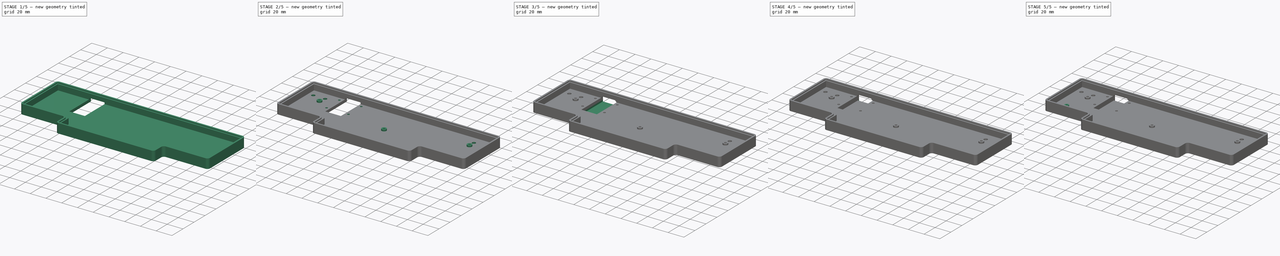
[diagram: build sequence overview — one tinted view per stage of 5, left to right]
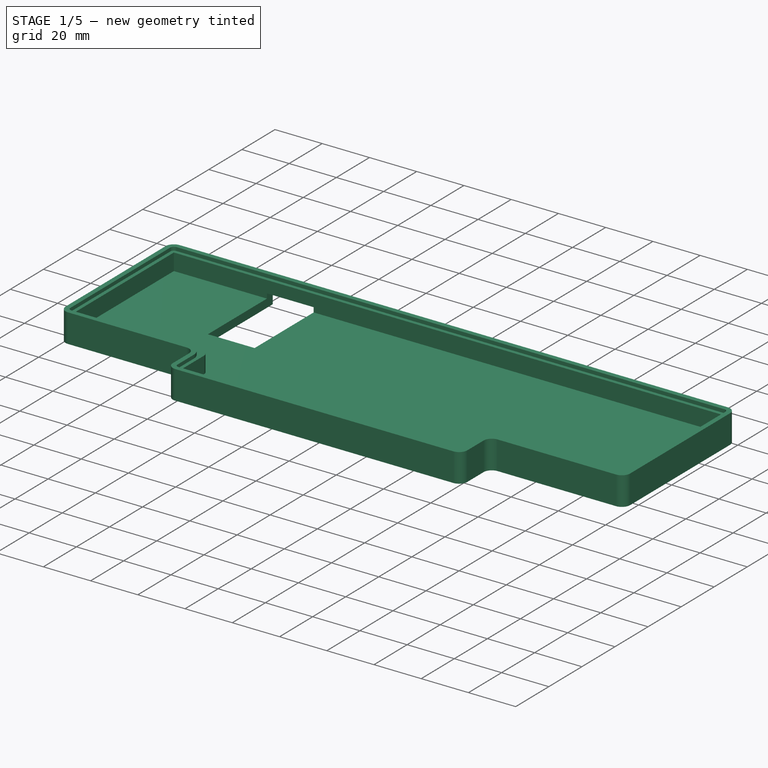
[diagram: stage 1 of 5 — iso view after this stage's code; geometry added in this stage tinted green]
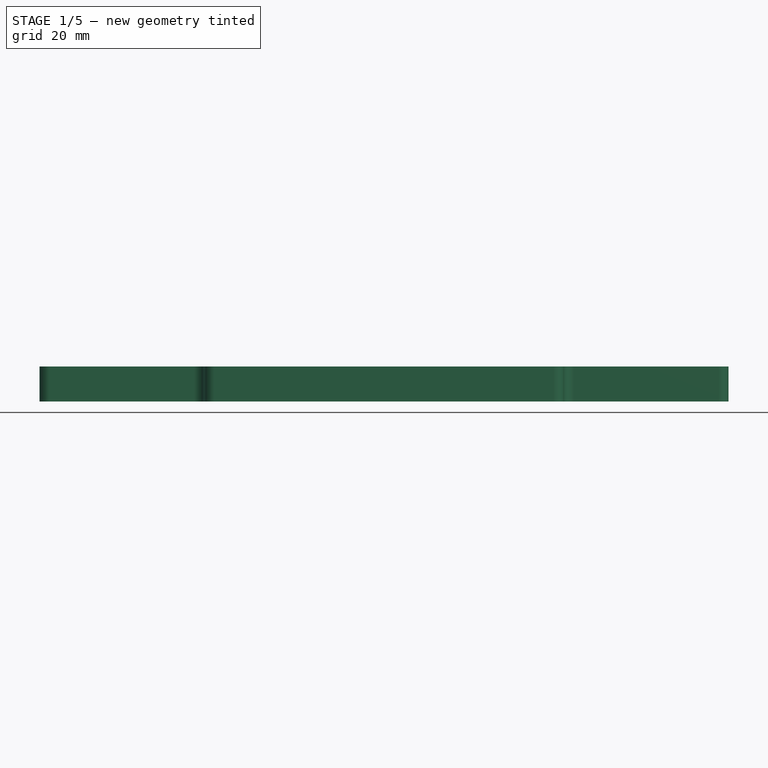
[diagram: stage 1 of 5 — front view after this stage's code; geometry added in this stage tinted green]
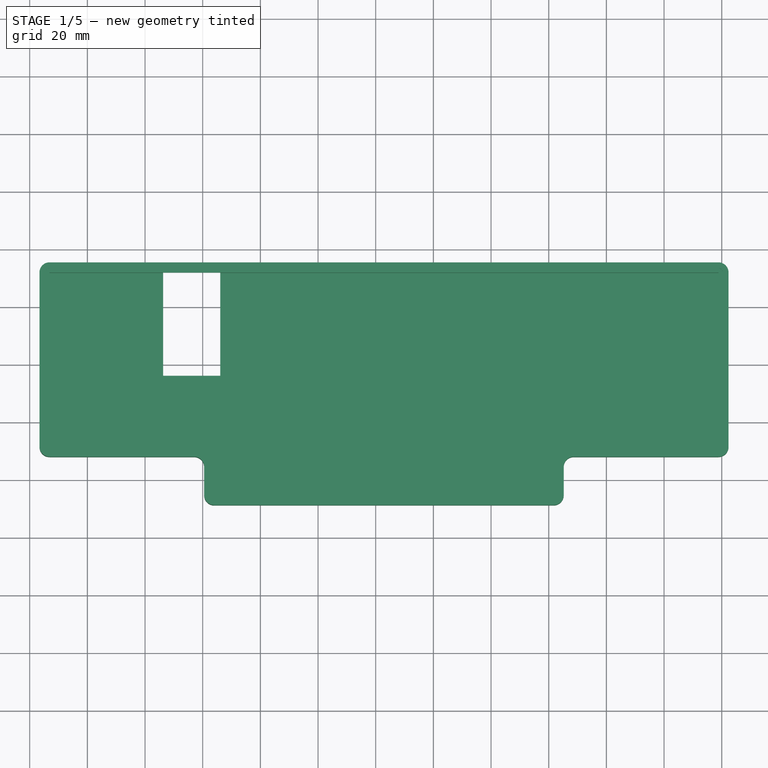
[diagram: stage 1 of 5 — top view after this stage's code; geometry added in this stage tinted green]
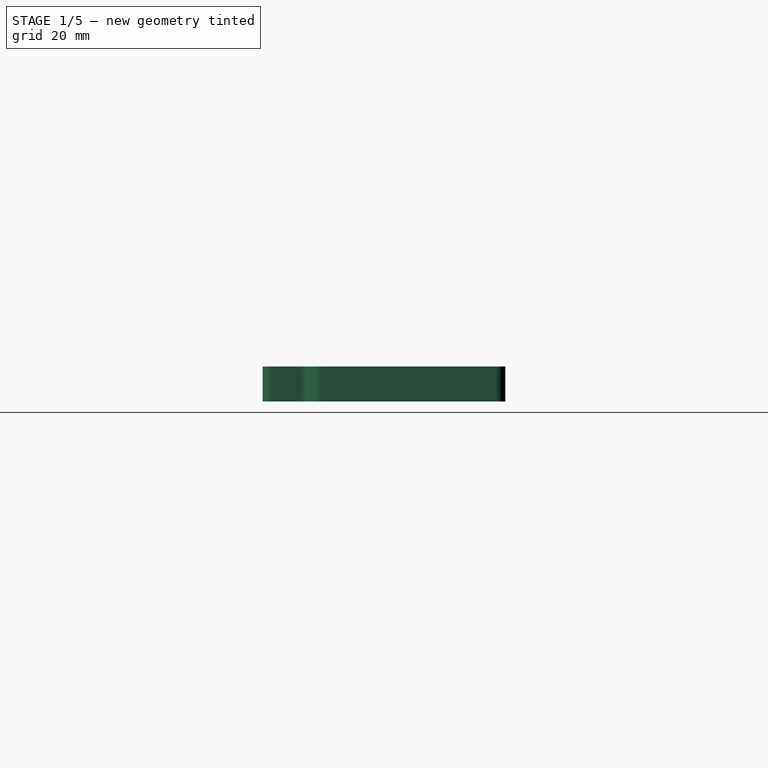
[diagram: stage 1 of 5 — right view after this stage's code; geometry added in this stage tinted green]
FCSTD DOCUMENT  (FreeCAD 0.20R29177 +426 (Git))
Label: case
License: All rights reserved
LicenseURL: http://en.wikipedia.org/wiki/All_rights_reserved
objects: Sketcher::SketchObject×19, PartDesign::Pocket×15, PartDesign::SubShapeBinder×6, PartDesign::Pad×6, PartDesign::ShapeBinder×5, PartDesign::Body×5, PartDesign::Fillet×3, PartDesign::Chamfer×3, Part::Feature×2, App::Part×2, Part::Offset2D×2, PartDesign::Thickness×1
note: 95 computed .brp shape members not serialized (recipe doc carries the construction recipe); baked Part::Feature solids carry a one-line shape summary decoded from their .brp

FEATURE [Part::Feature] Solid  label="pcb"
  shape: bbox 231 x 76.2 x 1.6 mm, 570 faces (baked)
FEATURE [Part::Feature] Feature  label="ARDUINO PRO MICRO001"
  Placement = pos=(83.8,-32.55,-2.45) rot=(0.57735,-0.57735,0.57735;4.18879rad)
  shape: bbox 17.78 x 34.59 x 13.3 mm, 4473 faces, 78 solids (baked)
FEATURE [App::Part] Part  label="pcb_assembly"
  Group = -> [Solid,Feature]
  Origin = -> Origin
  Placement = pos=(0,0,5.5) rot=(0,0,1;0rad)
FEATURE [PartDesign::SubShapeBinder] Binder
  BindCopyOnChange = 0
  BindMode = 0
  ClaimChildren = false
  Context = -> Part001 [Body.Binder.]
  Fuse = false
  MakeFace = true
  OffsetFill = false
  OffsetIntersection = false
  OffsetJoinType = 0
  OffsetOpenResult = false
  PartialLoad = false
  Refine = true
  Relative = true
  Support = -> [Part[Solid.]]
  _Version = 2
FEATURE [Sketcher::SketchObject] Sketch
  ExternalGeometry = -> [Binder]
  FullyConstrained = true
  MapMode = 5
  Support = -> [XY_Plane002]
  sketch-geometry (8):
    g0: LineSegment StartX=23.3844 StartY=-24.575 StartZ=0 EndX=23.3844 EndY=-92 EndZ=0
    g1: LineSegment StartX=23.3844 StartY=-92 StartZ=0 EndX=80.5 EndY=-92 EndZ=0
    g2: LineSegment StartX=80.5 StartY=-92 StartZ=0 EndX=80.5 EndY=-108.775 EndZ=0
    g3: LineSegment StartX=80.5 StartY=-108.775 StartZ=0 EndX=205.2 EndY=-108.775 EndZ=0
    g4: LineSegment StartX=205.2 StartY=-108.775 StartZ=0 EndX=205.2 EndY=-92 EndZ=0
    g5: LineSegment StartX=205.2 StartY=-92 StartZ=0 EndX=262.366 EndY=-92 EndZ=0
    g6: LineSegment StartX=262.366 StartY=-92 StartZ=0 EndX=262.366 EndY=-24.575 EndZ=0
    g7: LineSegment StartX=262.366 StartY=-24.575 StartZ=0 EndX=23.3844 EndY=-24.575 EndZ=0
  constraints (24):
    c: Vertical(g0)
    c: Coincident(g0,g1)
    c: Horizontal(g1)
    c: Coincident(g1,g2)
    c: Coincident(g2,g3)
    c: Horizontal(g3)
    c: Coincident(g3,g4)
    c: Coincident(g4,g5)
    c: Coincident(g5,g6)
    c: Coincident(g6,g7)
    c: Coincident(g7,g0)
    c: Horizontal(g7)
    c: Vertical(g6)
    c: Vertical(g4)
    c: Vertical(g2)
    c: Horizontal(g5)
    c: DistanceX(g-5,g5) = 4
    c: DistanceX(g-7,g3) = 4
    c: DistanceX(g2,g-8) = 4
    c: DistanceX(g0,g-10) = 4
    c: DistanceY(g-3,g6) = 4
    c: DistanceY(g5,g-5) = 4
    c: DistanceY(g2,g-8) = 4
    c: DistanceY(g0,g-10) = 4
FEATURE [PartDesign::Pad] Pad
  Direction = (0,0,1)
  Length = 12.1
  Length2 = 100
  Profile = -> Sketch
  Type = 0
  expr: Length = 5.5 + 1.6 + 5
FEATURE [PartDesign::Thickness] Thickness
  Base = -> Pad [Face10]
  BaseFeature = -> Pad
  Intersection = false
  Join = 1
  Mode = 0
  Reversed = true
  SupportTransform = false
  Value = 3.5
FEATURE [PartDesign::SubShapeBinder] Binder001
  BindCopyOnChange = 0
  BindMode = 0
  ClaimChildren = false
  Context = -> Part001 [Body.Binder001.]
  Fuse = false
  MakeFace = true
  OffsetFill = false
  OffsetIntersection = false
  OffsetJoinType = 0
  OffsetOpenResult = false
  PartialLoad = false
  Refine = true
  Relative = true
  Support = -> [Part[Feature.Edge60,Feature.Edge61,Feature.Edge62,Feature.Edge63]]
  _Version = 2
FEATURE [Sketcher::SketchObject] Sketch001
  ExternalGeometry = -> [Binder001]
  FullyConstrained = true
  MapMode = 5
  Placement = pos=(0,0,0) rot=(1,0,0;3.14159rad)
  Support = -> [Thickness]
  sketch-geometry (4):
    g0: LineSegment StartX=66.29 StartY=63.76 StartZ=0 EndX=86.07 EndY=63.76 EndZ=0
    g1: LineSegment StartX=86.07 StartY=63.76 StartZ=0 EndX=86.07 EndY=18.74 EndZ=0
    g2: LineSegment StartX=86.07 StartY=18.74 StartZ=0 EndX=66.29 EndY=18.74 EndZ=0
    g3: LineSegment StartX=66.29 StartY=18.74 StartZ=0 EndX=66.29 EndY=63.76 EndZ=0
  constraints (12):
    c: Coincident(g0,g1)
    c: Coincident(g1,g2)
    c: Coincident(g2,g3)
    c: Coincident(g3,g0)
    c: Horizontal(g0)
    c: Horizontal(g2)
    c: Vertical(g1)
    c: Vertical(g3)
    c: DistanceX(g-6,g1) = 1
    c: DistanceX(g2,g-6) = 1
    c: DistanceY(g-4,g0) = 2
    c: DistanceY(g2,g-6) = 10
FEATURE [PartDesign::Pocket] Pocket
  BaseFeature = -> Thickness
  Direction = (0,0,1)
  Length = 0
  Length2 = 100
  Offset = 2
  Profile = -> Sketch001
  Type = 3
  UpToFace = -> Thickness [Face19]
FEATURE [PartDesign::Fillet] Fillet
  Base = -> Pocket [Edge48,Edge49,Edge46,Edge2,Edge45,Edge11,Edge12,Edge1]
  BaseFeature = -> Pocket
  Radius = 3.5
  SupportTransform = false
  UseAllEdges = false
FEATURE [PartDesign::Fillet] Fillet001
  Base = -> Fillet [Edge89,Edge83]
  BaseFeature = -> Fillet
  Radius = 3
  SupportTransform = false
  UseAllEdges = false
FEATURE [PartDesign::SubShapeBinder] Binder002
  BindCopyOnChange = 0
  BindMode = 0
  ClaimChildren = false
  Context = -> Part001 [Body.Binder002.]
  Fuse = false
  MakeFace = true
  OffsetFill = false
  OffsetIntersection = false
  OffsetJoinType = 0
  OffsetOpenResult = false
  PartialLoad = false
  Refine = true
  Relative = true
  Support = -> [Fillet001[Edge14,Edge16,Edge18,Edge20,Edge22,Edge24,Edge26,Edge25]]
  _Version = 2
FEATURE [Part::Offset2D] Offset2D
  Fill = false
  Intersection = false
  Join = 0
  Mode = 1
  SelfIntersection = false
  Source = -> Binder002
  Value = -2
FEATURE [Part::Offset2D] Offset2D001
  Fill = false
  Intersection = false
  Join = 0
  Mode = 1
  SelfIntersection = false
  Source = -> Binder002
  Value = -2.5
FEATURE [PartDesign::SubShapeBinder] Binder003
  BindCopyOnChange = 0
  BindMode = 0
  ClaimChildren = false
  Context = -> Part001 [Body.Binder003.]
  Fuse = false
  MakeFace = true
  OffsetFill = false
  OffsetIntersection = false
  OffsetJoinType = 0
  OffsetOpenResult = false
  PartialLoad = false
  Refine = true
  Relative = true
  Support = -> [Offset2D]
  _Version = 2
FEATURE [PartDesign::SubShapeBinder] Binder004
  BindCopyOnChange = 0
  BindMode = 0
  ClaimChildren = false
  Context = -> Part001 [Body.Binder004.]
  Fuse = false
  MakeFace = true
  OffsetFill = false
  OffsetIntersection = false
  OffsetJoinType = 0
  OffsetOpenResult = false
  PartialLoad = false
  Refine = true
  Relative = true
  Support = -> [Offset2D001]
  _Version = 2
FEATURE [PartDesign::Pocket] Pocket001
  BaseFeature = -> Fillet001
  Direction = (0,0,-1)
  Length = 1.5
  Length2 = 100
  Profile = -> Binder003
  Type = 0
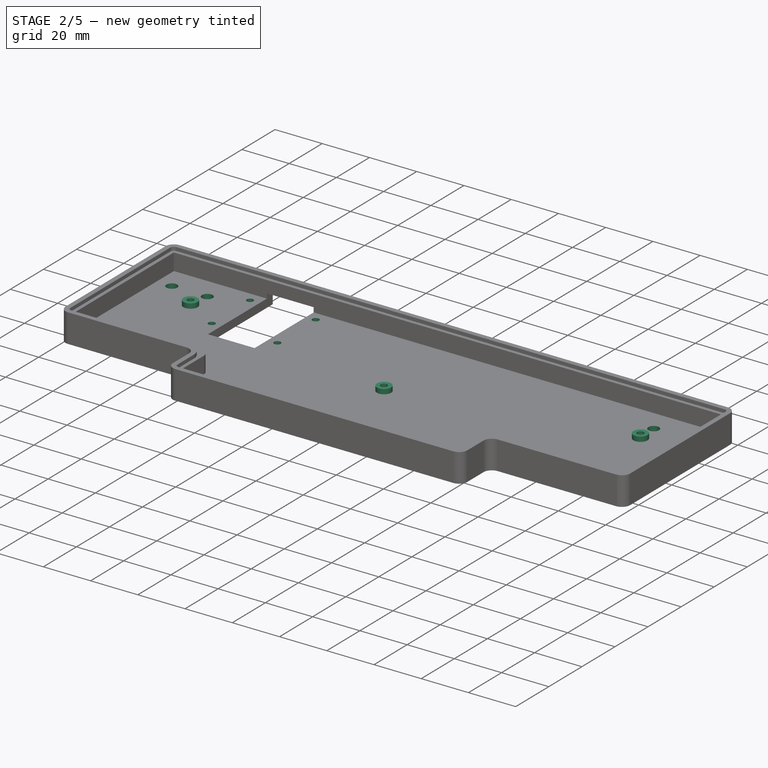
[diagram: stage 2 of 5 — iso view after this stage's code; geometry added in this stage tinted green]
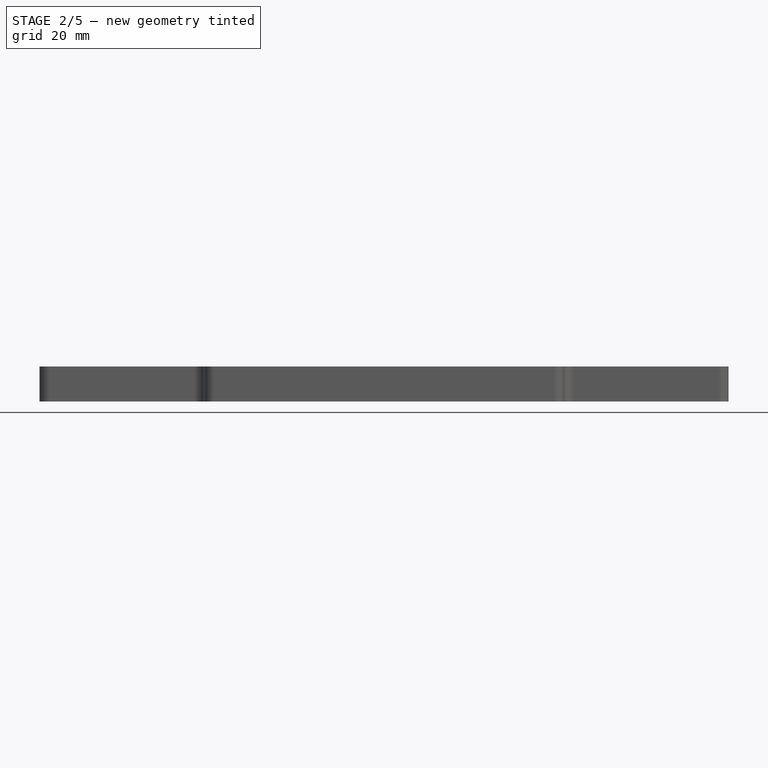
[diagram: stage 2 of 5 — front view after this stage's code; geometry added in this stage tinted green]
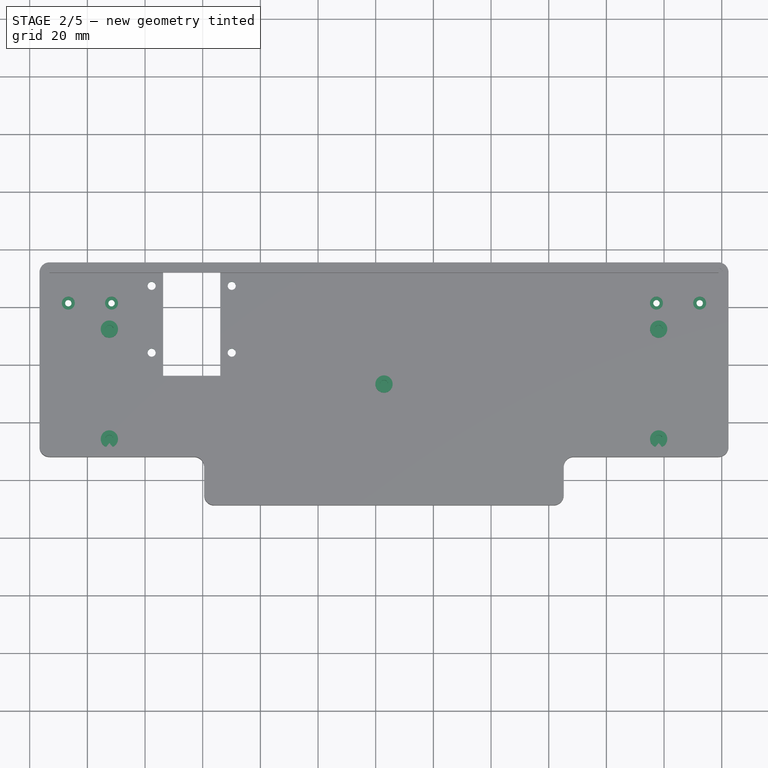
[diagram: stage 2 of 5 — top view after this stage's code; geometry added in this stage tinted green]
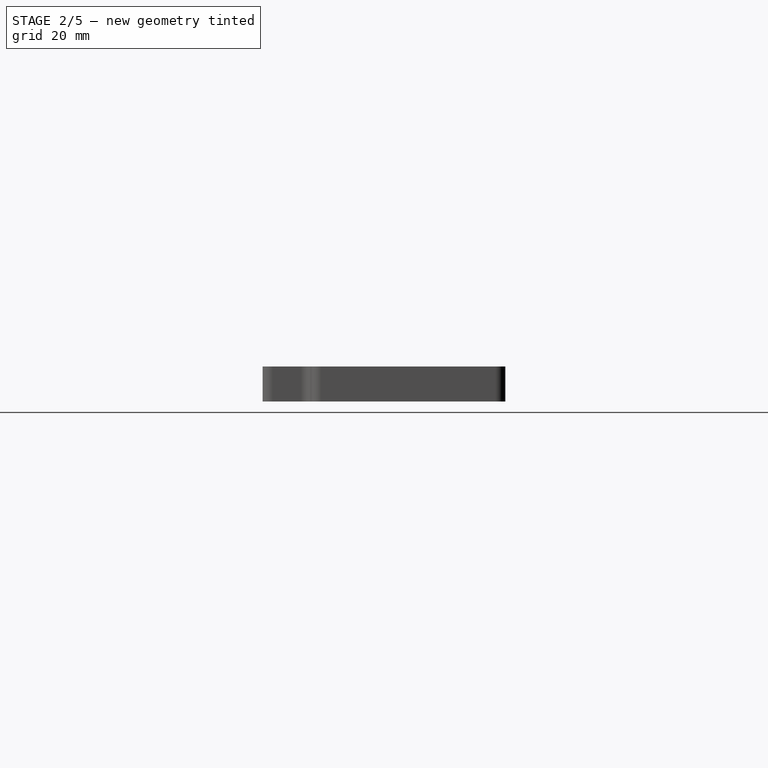
[diagram: stage 2 of 5 — right view after this stage's code; geometry added in this stage tinted green]
FEATURE [Sketcher::SketchObject] Sketch005
  ExternalGeometry = -> [Pocket001]
  FullyConstrained = true
  MapMode = 5
  Placement = pos=(0,0,0) rot=(1,0,0;3.14159rad)
  Support = -> [Pocket001]
  sketch-geometry (4):
    g0: Circle CenterX=62.29 CenterY=55.76 CenterZ=0 NormalX=0 NormalY=0 NormalZ=1 AngleXU=0 Radius=1.4
    g1: Circle CenterX=62.29 CenterY=32.575 CenterZ=0 NormalX=0 NormalY=0 NormalZ=1 AngleXU=0 Radius=1.4
    g2: Circle CenterX=90.07 CenterY=55.76 CenterZ=0 NormalX=0 NormalY=0 NormalZ=1 AngleXU=0 Radius=1.4
    g3: Circle CenterX=90.07 CenterY=32.575 CenterZ=0 NormalX=0 NormalY=0 NormalZ=1 AngleXU=0 Radius=1.4
  constraints (12):
    c: Equal(g1,g0)
    c: Equal(g0,g2)
    c: Equal(g2,g3)
    c: Diameter(g0) = 2.8
    c: Vertical(g0,g1)
    c: Vertical(g2,g3)
    c: Horizontal(g2,g0)
    c: Horizontal(g3,g1)
    c: DistanceX(g0,g-4) = 4
    c: DistanceX(g-3,g2) = 4
    c: DistanceY(g-3,g3) = 8
    c: DistanceY(g2,g-3) = 8
FEATURE [PartDesign::Pocket] Pocket004
  BaseFeature = -> Pocket001
  Direction = (0,0,1)
  Length = 5
  Length2 = 100
  Profile = -> Sketch005
  Type = 0
FEATURE [Sketcher::SketchObject] Sketch008
  ExternalGeometry = -> [Binder]
  FullyConstrained = true
  MapMode = 5
  Placement = pos=(0,0,5.5) rot=(1,0,0;3.14159rad)
  Support = -> [Binder]
  sketch-geometry (5):
    g0: Circle CenterX=47.625 CenterY=85.725 CenterZ=0 NormalX=0 NormalY=0 NormalZ=1 AngleXU=0 Radius=3
    g1: Circle CenterX=47.625 CenterY=47.625 CenterZ=0 NormalX=0 NormalY=0 NormalZ=1 AngleXU=0 Radius=3
    g2: Circle CenterX=142.875 CenterY=66.675 CenterZ=0 NormalX=0 NormalY=0 NormalZ=1 AngleXU=0 Radius=3
    g3: Circle CenterX=238.125 CenterY=85.725 CenterZ=0 NormalX=0 NormalY=0 NormalZ=1 AngleXU=0 Radius=3
    g4: Circle CenterX=238.125 CenterY=47.625 CenterZ=0 NormalX=0 NormalY=0 NormalZ=1 AngleXU=0 Radius=3
  constraints (10):
    c: Coincident(g0,g-3)
    c: Coincident(g1,g-4)
    c: Coincident(g2,g-7)
    c: Coincident(g3,g-5)
    c: Coincident(g4,g-6)
    c: Equal(g3,g4)
    c: Equal(g4,g2)
    c: Equal(g2,g1)
    c: Equal(g1,g0)
    c: Diameter(g0) = 6
FEATURE [PartDesign::Pad] Pad003
  BaseFeature = -> Pocket004
  Direction = (0,0,-1)
  Length = 2
  Length2 = 100
  Profile = -> Sketch008
  Type = 0
FEATURE [Sketcher::SketchObject] Sketch009
  ExternalGeometry = -> [Pad003]
  FullyConstrained = true
  MapMode = 5
  Placement = pos=(0,0,3.5) rot=(0,0,1;0rad)
  Support = -> [Pad003]
  sketch-geometry (5):
    g0: Circle CenterX=47.625 CenterY=-47.625 CenterZ=0 NormalX=0 NormalY=0 NormalZ=1 AngleXU=0 Radius=1.4
    g1: Circle CenterX=47.625 CenterY=-85.725 CenterZ=0 NormalX=0 NormalY=0 NormalZ=1 AngleXU=0 Radius=1.4
    g2: Circle CenterX=142.875 CenterY=-66.675 CenterZ=0 NormalX=0 NormalY=0 NormalZ=1 AngleXU=0 Radius=1.4
    g3: Circle CenterX=238.125 CenterY=-47.625 CenterZ=0 NormalX=0 NormalY=0 NormalZ=1 AngleXU=0 Radius=1.4
    g4: Circle CenterX=238.125 CenterY=-85.725 CenterZ=0 NormalX=0 NormalY=0 NormalZ=1 AngleXU=0 Radius=1.4
  constraints (10):
    c: Coincident(g0,g-3)
    c: Coincident(g1,g-5)
    c: Coincident(g2,g-4)
    c: Coincident(g3,g-6)
    c: Coincident(g4,g-7)
    c: Equal(g2,g0)
    c: Equal(g0,g1)
    c: Equal(g1,g3)
    c: Equal(g3,g4)
    c: Diameter(g0) = 2.8
FEATURE [PartDesign::Pocket] Pocket007
  BaseFeature = -> Pad003
  Direction = (0,0,-1)
  Length = 2
  Length2 = 10
  Profile = -> Sketch009
  Type = 4
FEATURE [PartDesign::Body] Body003  label="washer"
  Group = -> [ShapeBinder003,Sketch012,Pad004]
  Origin = -> Origin005
  Tip = -> Pad004
FEATURE [Sketcher::SketchObject] Sketch013
  ExternalGeometry = -> [Pocket007]
  FullyConstrained = true
  MapMode = 5
  Placement = pos=(0,0,0) rot=(1,0,0;3.14159rad)
  Support = -> [Pocket007]
  sketch-geometry (4):
    g0: Circle CenterX=33.3844 CenterY=38.575 CenterZ=0 NormalX=0 NormalY=0 NormalZ=1 AngleXU=0 Radius=1.1
    g1: Circle CenterX=252.366 CenterY=38.575 CenterZ=0 NormalX=0 NormalY=0 NormalZ=1 AngleXU=0 Radius=1.1
    g2: Circle CenterX=48.3844 CenterY=38.575 CenterZ=0 NormalX=0 NormalY=0 NormalZ=1 AngleXU=0 Radius=1.1
    g3: Circle CenterX=237.366 CenterY=38.575 CenterZ=0 NormalX=0 NormalY=0 NormalZ=1 AngleXU=0 Radius=1.1
  constraints (12):
    c: Horizontal(g0,g1)
    c: DistanceY(g-5,g0) = 14
    c: Horizontal(g3,g2)
    c: Horizontal(g2,g0)
    c: Equal(g0,g2)
    c: Equal(g2,g3)
    c: Equal(g3,g1)
    c: Diameter(g0) = 2.2
    c: DistanceX(g0,g2) = 15
    c: DistanceX(g3,g1) = 15
    c: DistanceX(g-3,g0) = 10
    c: DistanceX(g1,g-4) = 10
FEATURE [PartDesign::Pocket] Pocket010
  BaseFeature = -> Pocket007
  Direction = (0,0,1)
  Length = 5
  Length2 = 5
  Profile = -> Sketch013
  ReferenceAxis = -> Sketch013 [N_Axis]
  Type = 1
FEATURE [Sketcher::SketchObject] Sketch017
  ExternalGeometry = -> [Pocket010]
  FullyConstrained = true
  MapMode = 5
  Placement = pos=(0,0,3.5) rot=(0,0,1;0rad)
  Support = -> [Pocket010]
  sketch-geometry (4):
    g0: Circle CenterX=33.3844 CenterY=-38.575 CenterZ=0 NormalX=0 NormalY=0 NormalZ=1 AngleXU=0 Radius=2.25
    g1: Circle CenterX=48.3844 CenterY=-38.575 CenterZ=0 NormalX=0 NormalY=0 NormalZ=1 AngleXU=0 Radius=2.25
    g2: Circle CenterX=237.366 CenterY=-38.575 CenterZ=0 NormalX=0 NormalY=0 NormalZ=1 AngleXU=0 Radius=2.25
    g3: Circle CenterX=252.366 CenterY=-38.575 CenterZ=0 NormalX=0 NormalY=0 NormalZ=1 AngleXU=0 Radius=2.25
  constraints (8):
    c: Coincident(g0,g-3)
    c: Coincident(g1,g-4)
    c: Coincident(g2,g-6)
    c: Coincident(g3,g-5)
    c: Equal(g3,g2)
    c: Equal(g2,g1)
    c: Equal(g1,g0)
    c: Diameter(g0) = 4.5
FEATURE [PartDesign::Pocket] Pocket013
  BaseFeature = -> Pocket010
  Direction = (0,0,-1)
  Length = 2
  Length2 = 5
  Profile = -> Sketch017
  ReferenceAxis = -> Sketch017 [N_Axis]
  Type = 0
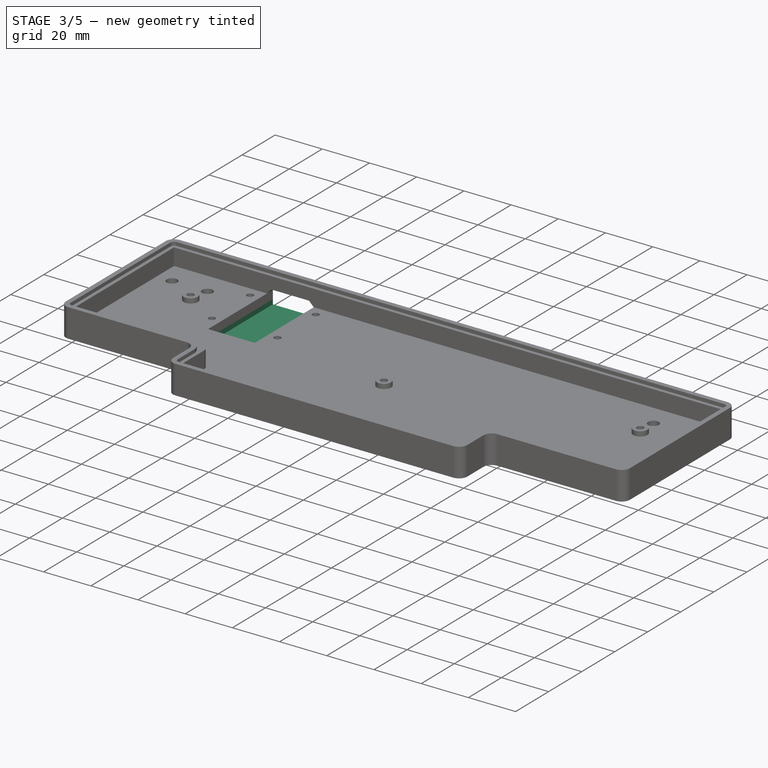
[diagram: stage 3 of 5 — iso view after this stage's code; geometry added in this stage tinted green]
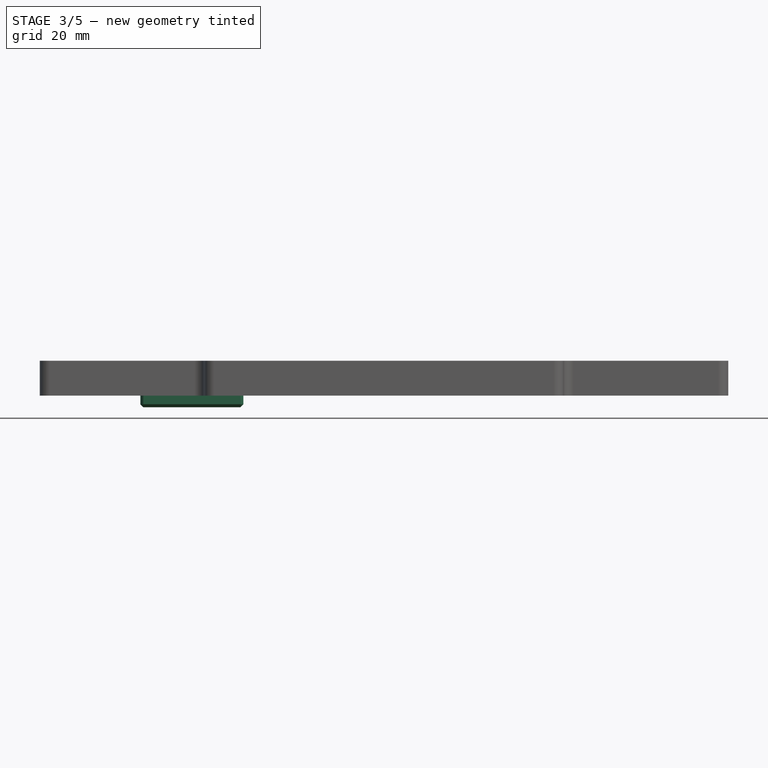
[diagram: stage 3 of 5 — front view after this stage's code; geometry added in this stage tinted green]
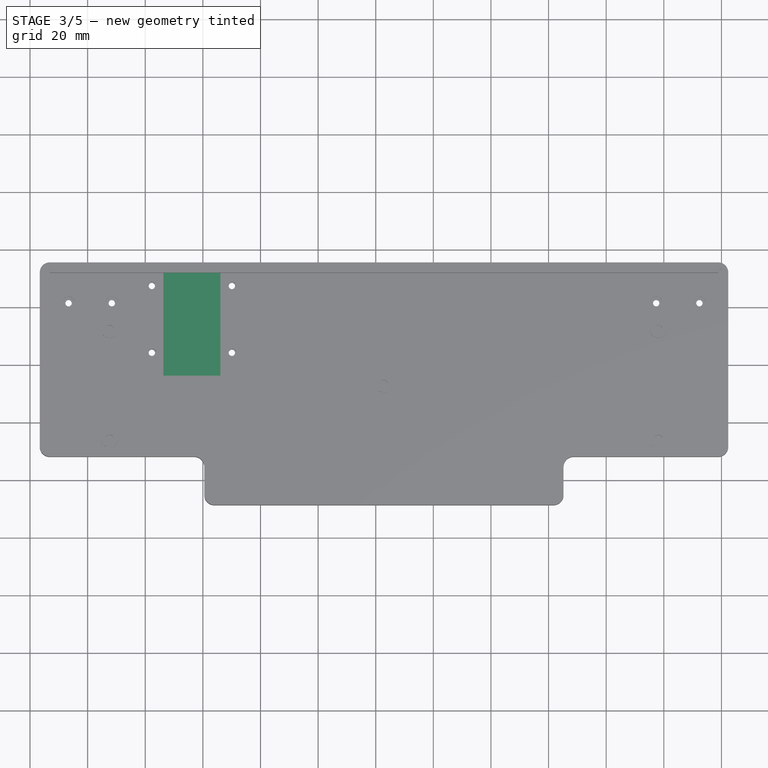
[diagram: stage 3 of 5 — top view after this stage's code; geometry added in this stage tinted green]
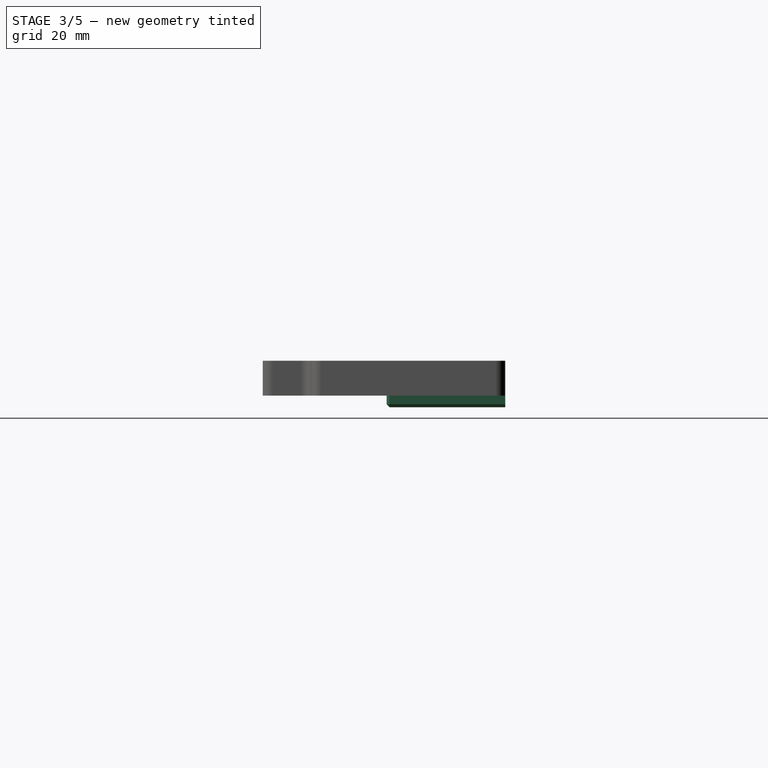
[diagram: stage 3 of 5 — right view after this stage's code; geometry added in this stage tinted green]
FEATURE [PartDesign::ShapeBinder] ShapeBinder
  Support = -> [Pocket001]
  TraceSupport = false
FEATURE [Sketcher::SketchObject] Sketch003
  ExternalGeometry = -> [ShapeBinder]
  FullyConstrained = true
  MapMode = 5
  Placement = pos=(0,0,0) rot=(1,0,0;3.14159rad)
  Support = -> [ShapeBinder]
  sketch-geometry (4):
    g0: LineSegment StartX=58.29 StartY=65.76 StartZ=0 EndX=94.07 EndY=65.76 EndZ=0
    g1: LineSegment StartX=94.07 StartY=65.76 StartZ=0 EndX=94.07 EndY=24.575 EndZ=0
    g2: LineSegment StartX=94.07 StartY=24.575 StartZ=0 EndX=58.29 EndY=24.575 EndZ=0
    g3: LineSegment StartX=58.29 StartY=24.575 StartZ=0 EndX=58.29 EndY=65.76 EndZ=0
  constraints (12):
    c: Coincident(g0,g1)
    c: Coincident(g1,g2)
    c: Coincident(g2,g3)
    c: Coincident(g3,g0)
    c: Horizontal(g0)
    c: Horizontal(g2)
    c: Vertical(g1)
    c: Vertical(g3)
    c: PointOnObject(g1,g-6)
    c: DistanceX(g-4,g0) = 8
    c: DistanceX(g0,g-5) = 8
    c: DistanceY(g-4,g0) = 2
FEATURE [PartDesign::Pad] Pad002
  Direction = (0,0,-1)
  Length = 4
  Length2 = 100
  Profile = -> Sketch003
  ReferenceAxis = -> Sketch003 [N_Axis]
  Type = 0
FEATURE [Sketcher::SketchObject] Sketch004
  ExternalGeometry = -> [ShapeBinder]
  FullyConstrained = true
  MapMode = 5
  Placement = pos=(0,0,0) rot=(1,0,0;3.14159rad)
  Support = -> [ShapeBinder]
  sketch-geometry (4):
    g0: LineSegment StartX=66.29 StartY=63.76 StartZ=0 EndX=86.07 EndY=63.76 EndZ=0
    g1: LineSegment StartX=86.07 StartY=63.76 StartZ=0 EndX=86.07 EndY=24.575 EndZ=0
    g2: LineSegment StartX=86.07 StartY=24.575 StartZ=0 EndX=66.29 EndY=24.575 EndZ=0
    g3: LineSegment StartX=66.29 StartY=24.575 StartZ=0 EndX=66.29 EndY=63.76 EndZ=0
  constraints (10):
    c: Coincident(g0,g1)
    c: Coincident(g1,g2)
    c: Coincident(g2,g3)
    c: Coincident(g3,g0)
    c: Horizontal(g0)
    c: Horizontal(g2)
    c: Vertical(g1)
    c: Vertical(g3)
    c: Coincident(g0,g-5)
    c: Coincident(g1,g-4)
FEATURE [PartDesign::Pocket] Pocket003
  BaseFeature = -> Pad002
  Direction = (0,0,1)
  Length = 2
  Length2 = 100
  Profile = -> Sketch004
  ReferenceAxis = -> Sketch004 [N_Axis]
  Reversed = true
  Type = 0
FEATURE [PartDesign::ShapeBinder] ShapeBinder001
  Support = -> [Pocket004]
  TraceSupport = false
FEATURE [Sketcher::SketchObject] Sketch006
  ExternalGeometry = -> [ShapeBinder001]
  FullyConstrained = true
  MapMode = 5
  Support = -> [Pocket003]
  sketch-geometry (4):
    g0: Circle CenterX=62.29 CenterY=-32.575 CenterZ=0 NormalX=0 NormalY=0 NormalZ=1 AngleXU=0 Radius=1.1
    g1: Circle CenterX=90.07 CenterY=-32.575 CenterZ=0 NormalX=0 NormalY=0 NormalZ=1 AngleXU=0 Radius=1.1
    g2: Circle CenterX=90.07 CenterY=-55.76 CenterZ=0 NormalX=0 NormalY=0 NormalZ=1 AngleXU=0 Radius=1.1
    g3: Circle CenterX=62.29 CenterY=-55.76 CenterZ=0 NormalX=0 NormalY=0 NormalZ=1 AngleXU=0 Radius=1.1
  constraints (8):
    c: Coincident(g0,g-3)
    c: Coincident(g1,g-4)
    c: Coincident(g2,g-5)
    c: Coincident(g3,g-6)
    c: Equal(g3,g0)
    c: Equal(g0,g1)
    c: Equal(g1,g2)
    c: Diameter(g0) = 2.2
FEATURE [PartDesign::Pocket] Pocket005
  BaseFeature = -> Pocket003
  Direction = (0,0,-1)
  Length = 0
  Length2 = 100
  Profile = -> Sketch006
  Type = 1
FEATURE [Sketcher::SketchObject] Sketch007
  ExternalGeometry = -> [Pocket005]
  FullyConstrained = true
  MapMode = 5
  Placement = pos=(0,0,-4) rot=(1,0,0;3.14159rad)
  Support = -> [Pocket005]
  sketch-geometry (4):
    g0: Circle CenterX=62.29 CenterY=55.76 CenterZ=0 NormalX=0 NormalY=0 NormalZ=1 AngleXU=0 Radius=2.25
    g1: Circle CenterX=90.07 CenterY=55.76 CenterZ=0 NormalX=0 NormalY=0 NormalZ=1 AngleXU=0 Radius=2.25
    g2: Circle CenterX=90.07 CenterY=32.575 CenterZ=0 NormalX=0 NormalY=0 NormalZ=1 AngleXU=0 Radius=2.25
    g3: Circle CenterX=62.29 CenterY=32.575 CenterZ=0 NormalX=0 NormalY=0 NormalZ=1 AngleXU=0 Radius=2.25
  constraints (8):
    c: Coincident(g0,g-4)
    c: Coincident(g1,g-3)
    c: Coincident(g2,g-6)
    c: Coincident(g3,g-5)
    c: Equal(g0,g1)
    c: Equal(g1,g3)
    c: Equal(g3,g2)
    c: Diameter(g0) = 4.5
FEATURE [PartDesign::Pocket] Pocket006
  BaseFeature = -> Pocket005
  Direction = (0,0,1)
  Length = 2
  Length2 = 100
  Profile = -> Sketch007
  Type = 0
FEATURE [PartDesign::Body] Body004  label="foot"
  Group = -> [ShapeBinder004,Sketch014,Pad005,Sketch015,Pocket011,Sketch016,Pocket012,Fillet002,Chamfer]
  Origin = -> Origin006
  Tip = -> Chamfer
FEATURE [PartDesign::Chamfer] Chamfer001
  Angle = 45
  Base = -> Pocket006 [Edge4,Edge10,Edge7,Edge1,Edge2]
  BaseFeature = -> Pocket006
  ChamferType = 0
  FlipDirection = false
  Size = 1
  Size2 = 1
  SupportTransform = false
  UseAllEdges = false
FEATURE [PartDesign::Body] Body002  label="micro_cover"
  Group = -> [ShapeBinder,Sketch003,Pad002,Sketch004,Pocket003,ShapeBinder001,Sketch006,Pocket005,Sketch007,Pocket006,Chamfer001,Sketch019,Pocket015]
  Origin = -> Origin004
  Tip = -> Pocket015
FEATURE [PartDesign::Chamfer] Chamfer002
  Angle = 45
  Base = -> Pocket013 [Edge117,Edge112]
  BaseFeature = -> Pocket013
  ChamferType = 0
  FlipDirection = true
  Size = 2
  Size2 = 1
  SupportTransform = false
  UseAllEdges = false
FEATURE [PartDesign::Body] Body  label="bottom"
  Group = -> [Binder,Sketch,Pad,Thickness,Binder001,Sketch001,Pocket,Fillet,Fillet001,Binder002,Binder003,Binder004,Pocket001,Sketch005,Pocket004,Sketch008,Pad003,Sketch009,Pocket007,Sketch013,Pocket010,Sketch017,Pocket013,Chamfer002]
  Origin = -> Origin002
  Tip = -> Chamfer002
FEATURE [App::Part] Part001  label="case"
  Group = -> [Part,Body,Body001,Body002,Body003,Body004]
  Origin = -> Origin001
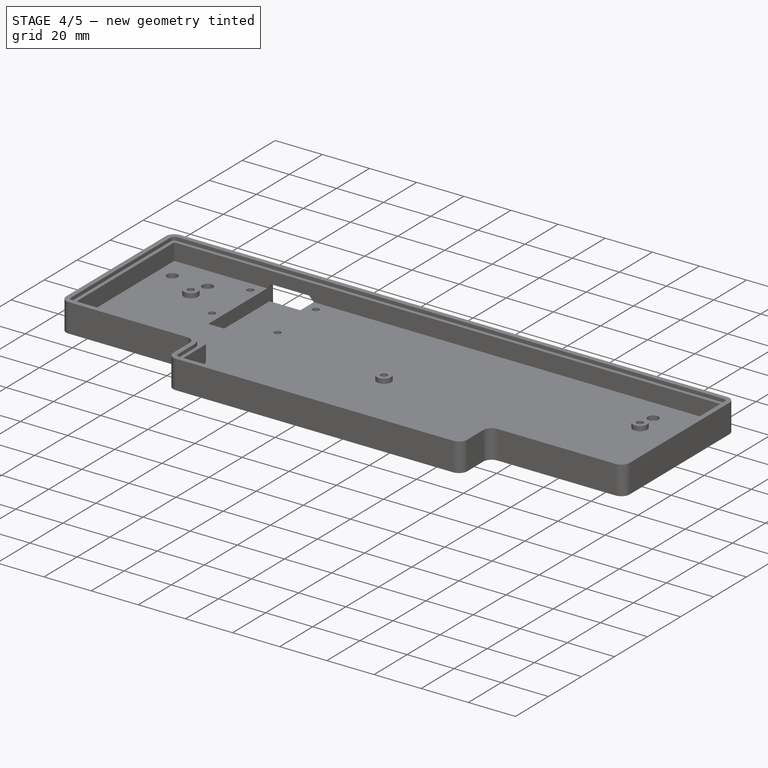
[diagram: stage 4 of 5 — iso view after this stage's code; geometry added in this stage tinted green]
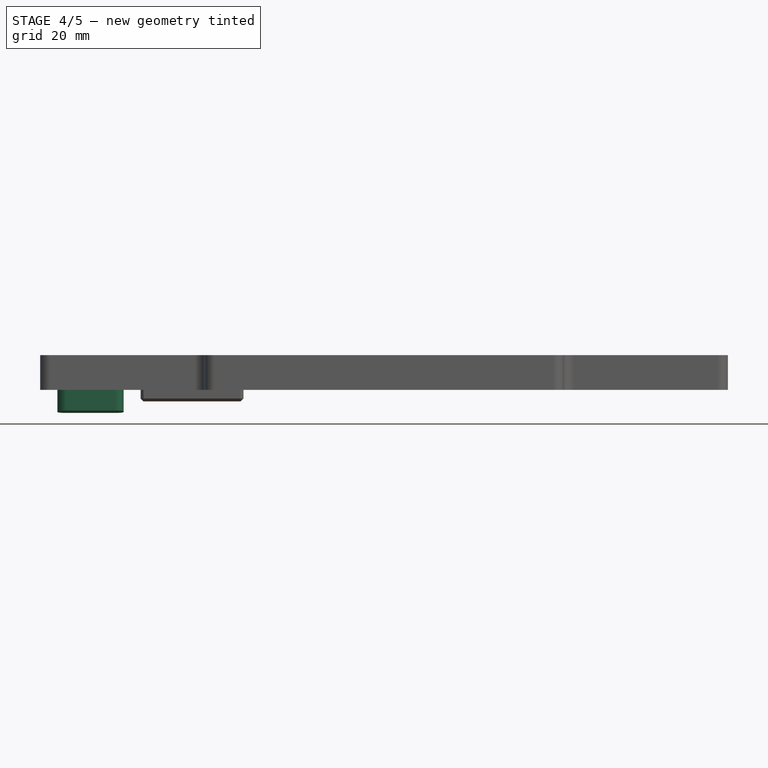
[diagram: stage 4 of 5 — front view after this stage's code; geometry added in this stage tinted green]
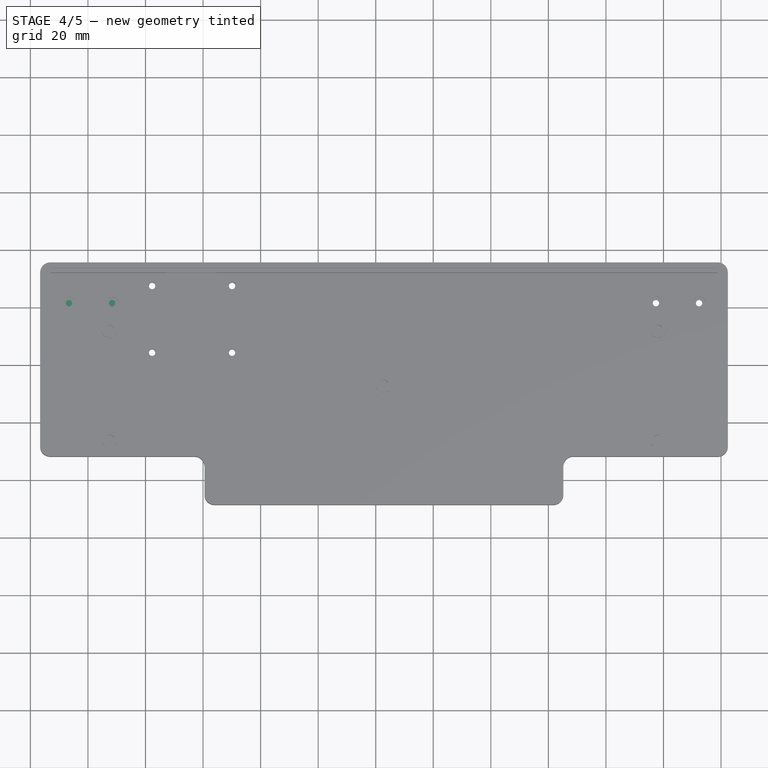
[diagram: stage 4 of 5 — top view after this stage's code; geometry added in this stage tinted green]
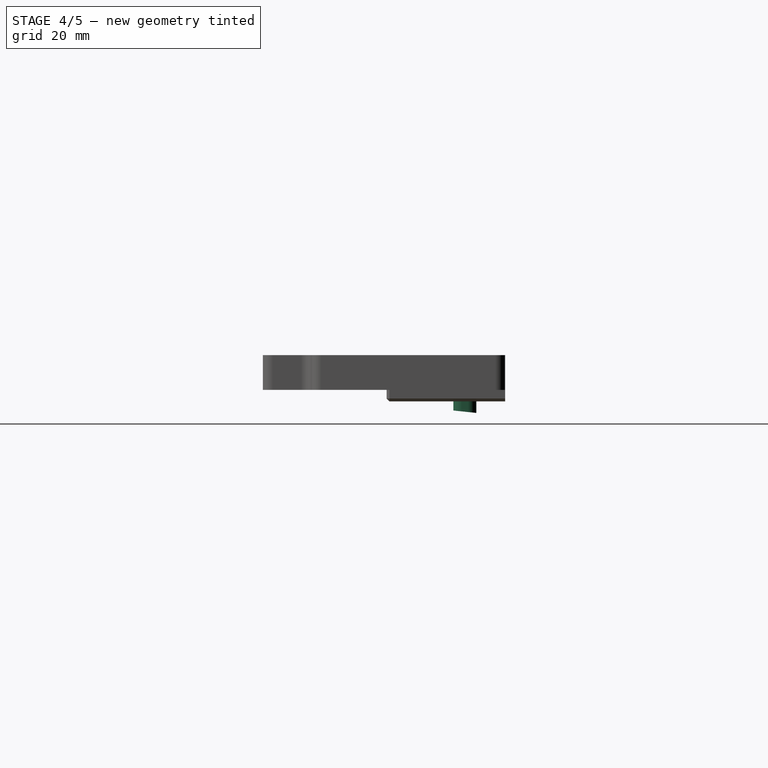
[diagram: stage 4 of 5 — right view after this stage's code; geometry added in this stage tinted green]
FEATURE [PartDesign::ShapeBinder] ShapeBinder004
  Support = -> [Pocket010]
  TraceSupport = false
FEATURE [Sketcher::SketchObject] Sketch014
  ExternalGeometry = -> [ShapeBinder004]
  FullyConstrained = true
  MapMode = 5
  Placement = pos=(0,0,0) rot=(1,0,0;3.14159rad)
  Support = -> [ShapeBinder004]
  sketch-geometry (4):
    g0: LineSegment StartX=29.3844 StartY=42.575 StartZ=0 EndX=52.3844 EndY=42.575 EndZ=0
    g1: LineSegment StartX=52.3844 StartY=42.575 StartZ=0 EndX=52.3844 EndY=34.575 EndZ=0
    g2: LineSegment StartX=52.3844 StartY=34.575 StartZ=0 EndX=29.3844 EndY=34.575 EndZ=0
    g3: LineSegment StartX=29.3844 StartY=34.575 StartZ=0 EndX=29.3844 EndY=42.575 EndZ=0
  constraints (12):
    c: Coincident(g0,g1)
    c: Coincident(g1,g2)
    c: Coincident(g2,g3)
    c: Coincident(g3,g0)
    c: Horizontal(g0)
    c: Horizontal(g2)
    c: Vertical(g1)
    c: Vertical(g3)
    c: DistanceY(g2,g-3) = 4
    c: DistanceY(g-4,g0) = 4
    c: DistanceX(g0,g-3) = 4
    c: DistanceX(g-4,g0) = 4
FEATURE [PartDesign::Pad] Pad005
  Direction = (0,0,-1)
  Length = 8
  Length2 = 10
  Profile = -> Sketch014
  ReferenceAxis = -> Sketch014 [N_Axis]
  Type = 0
FEATURE [Sketcher::SketchObject] Sketch015
  ExternalGeometry = -> [ShapeBinder004]
  FullyConstrained = true
  MapMode = 5
  Support = -> [Pad005]
  sketch-geometry (2):
    g0: Circle CenterX=33.3844 CenterY=-38.575 CenterZ=0 NormalX=0 NormalY=0 NormalZ=1 AngleXU=0 Radius=1.4
    g1: Circle CenterX=48.3844 CenterY=-38.575 CenterZ=0 NormalX=0 NormalY=0 NormalZ=1 AngleXU=0 Radius=1.4
  constraints (4):
    c: Coincident(g0,g-4)
    c: Coincident(g1,g-3)
    c: Equal(g0,g1)
    c: Diameter(g1) = 2.8
FEATURE [PartDesign::Pocket] Pocket011
  BaseFeature = -> Pad005
  Direction = (0,0,-1)
  Length = 4
  Length2 = 5
  Profile = -> Sketch015
  ReferenceAxis = -> Sketch015 [N_Axis]
  Type = 0
FEATURE [Sketcher::SketchObject] Sketch016
  ExternalGeometry = -> [Pocket011]
  FullyConstrained = true
  MapMode = 5
  Placement = pos=(29.3844,0,0) rot=(0.57735,-0.57735,-0.57735;2.0944rad)
  Support = -> [Pocket011]
  sketch-geometry (3):
    g0: LineSegment StartX=34.575 StartY=-8 StartZ=0 EndX=42.575 EndY=-7.15917 EndZ=0
    g1: LineSegment StartX=42.575 StartY=-7.15917 StartZ=0 EndX=42.575 EndY=-8 EndZ=0
    g2: LineSegment StartX=42.575 StartY=-8 StartZ=0 EndX=34.575 EndY=-8 EndZ=0
  constraints (7):
    c: Coincident(g-3,g0)
    c: PointOnObject(g0,g-4)
    c: Coincident(g0,g1)
    c: Coincident(g1,g-4)
    c: Coincident(g1,g2)
    c: Coincident(g2,g0)
    c: Angle(g2,g0) = 0.10472
FEATURE [PartDesign::Pocket] Pocket012
  BaseFeature = -> Pocket011
  Direction = (1,0,0)
  Length = 5
  Length2 = 5
  Profile = -> Sketch016
  ReferenceAxis = -> Sketch016 [N_Axis]
  Type = 1
FEATURE [PartDesign::Fillet] Fillet002
  Base = -> Pocket012 [Edge14,Edge10,Edge2,Edge4]
  BaseFeature = -> Pocket012
  Radius = 3
  SupportTransform = false
  UseAllEdges = false
FEATURE [Sketcher::SketchObject] Sketch019
  ExternalGeometry = -> [Chamfer001]
  FullyConstrained = true
  MapMode = 5
  Placement = pos=(0,-24.575,0) rot=(0,0.707107,0.707107;3.14159rad)
  Support = -> [Chamfer001]
  sketch-geometry (4):
    g0: LineSegment StartX=-86.07 StartY=-2 StartZ=0 EndX=-66.29 EndY=-2 EndZ=0
    g1: LineSegment StartX=-66.29 StartY=-2 StartZ=0 EndX=-66.29 EndY=-4 EndZ=0
    g2: LineSegment StartX=-66.29 StartY=-4 StartZ=0 EndX=-86.07 EndY=-4 EndZ=0
    g3: LineSegment StartX=-86.07 StartY=-4 StartZ=0 EndX=-86.07 EndY=-2 EndZ=0
  constraints (10):
    c: Coincident(g0,g1)
    c: Coincident(g1,g2)
    c: Coincident(g2,g3)
    c: Coincident(g3,g0)
    c: Horizontal(g2)
    c: Vertical(g1)
    c: Vertical(g3)
    c: Coincident(g0,g-3)
    c: PointOnObject(g1,g-4)
    c: Coincident(g0,g-3)
FEATURE [PartDesign::Pocket] Pocket015
  BaseFeature = -> Chamfer001
  Direction = (0,-1,2e-16)
  Length = 2
  Length2 = 5
  Profile = -> Sketch019
  ReferenceAxis = -> Sketch019 [N_Axis]
  Type = 0
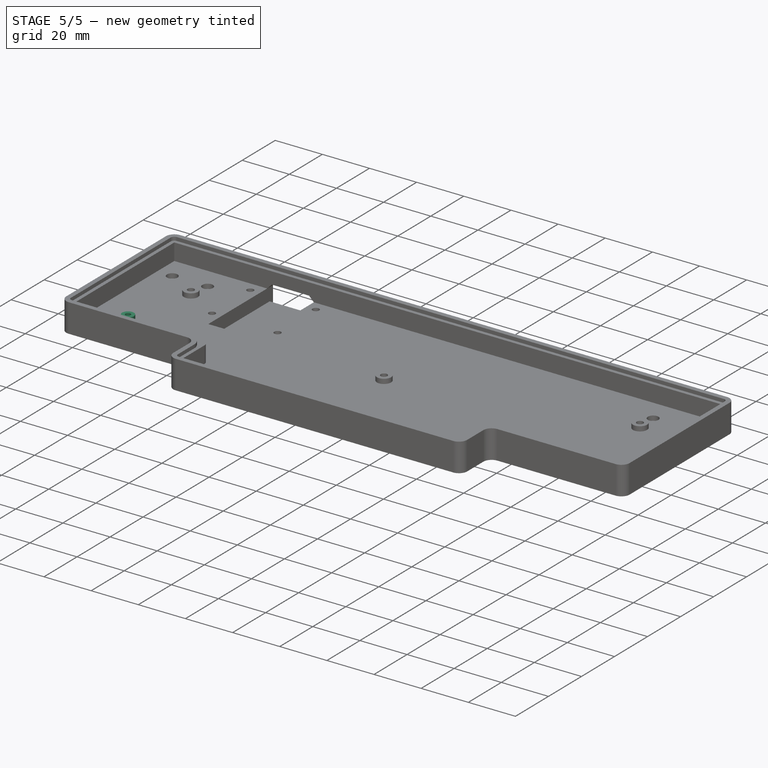
[diagram: stage 5 of 5 — iso view after this stage's code; geometry added in this stage tinted green]
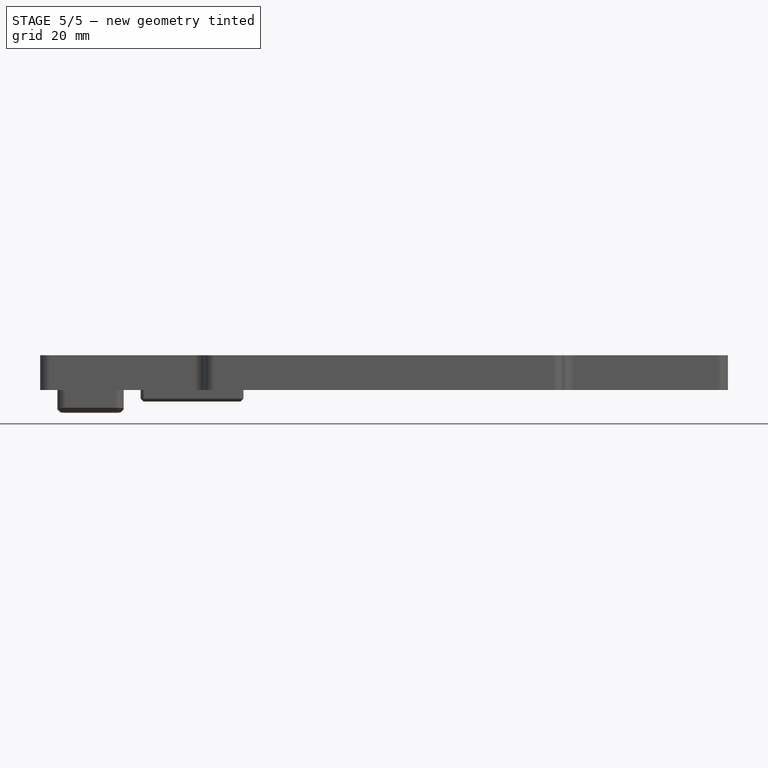
[diagram: stage 5 of 5 — front view after this stage's code; geometry added in this stage tinted green]
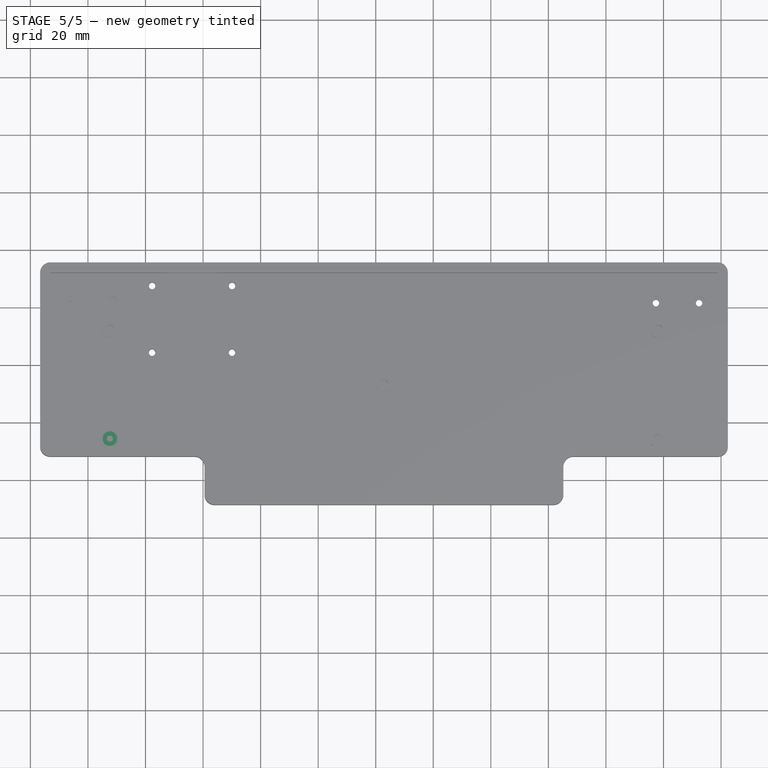
[diagram: stage 5 of 5 — top view after this stage's code; geometry added in this stage tinted green]
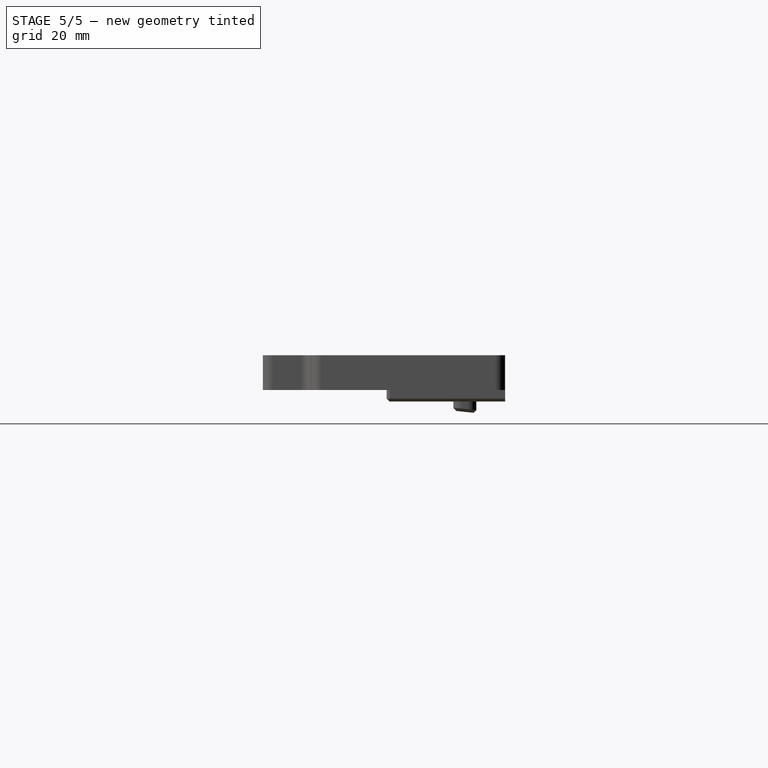
[diagram: stage 5 of 5 — right view after this stage's code; geometry added in this stage tinted green]
FEATURE [Sketcher::SketchObject] Sketch002
  ExternalGeometry = -> [Binder]
  FullyConstrained = true
  MapMode = 5
  Placement = pos=(0,0,12.1) rot=(0,0,1;0rad)
  Support = -> [Pocket001]
  sketch-geometry (168):
    g0: LineSegment StartX=31 StartY=-31 StartZ=0 EndX=45.2 EndY=-31 EndZ=0
    g1: LineSegment StartX=45.2 StartY=-31 StartZ=0 EndX=45.2 EndY=-45.2 EndZ=0
    g2: LineSegment StartX=45.2 StartY=-45.2 StartZ=0 EndX=31 EndY=-45.2 EndZ=0
    g3: LineSegment StartX=31 StartY=-45.2 StartZ=0 EndX=31 EndY=-31 EndZ=0
    g4: LineSegment StartX=50.05 StartY=-31 StartZ=0 EndX=64.25 EndY=-31 EndZ=0
    g5: LineSegment StartX=64.25 StartY=-31 StartZ=0 EndX=64.25 EndY=-45.2 EndZ=0
    g6: LineSegment StartX=64.25 StartY=-45.2 StartZ=0 EndX=50.05 EndY=-45.2 EndZ=0
    g7: LineSegment StartX=50.05 StartY=-45.2 StartZ=0 EndX=50.05 EndY=-31 EndZ=0
    g8: LineSegment StartX=31 StartY=-50.05 StartZ=0 EndX=45.2 EndY=-50.05 EndZ=0
    g9: LineSegment StartX=45.2 StartY=-50.05 StartZ=0 EndX=45.2 EndY=-64.25 EndZ=0
    g10: LineSegment StartX=45.2 StartY=-64.25 StartZ=0 EndX=31 EndY=-64.25 EndZ=0
    g11: LineSegment StartX=31 StartY=-64.25 StartZ=0 EndX=31 EndY=-50.05 EndZ=0
    g12: LineSegment StartX=50.05 StartY=-50.05 StartZ=0 EndX=64.25 EndY=-50.05 EndZ=0
    g13: LineSegment StartX=64.25 StartY=-50.05 StartZ=0 EndX=64.25 EndY=-64.25 EndZ=0
    g14: LineSegment StartX=64.25 StartY=-64.25 StartZ=0 EndX=50.05 EndY=-64.25 EndZ=0
    g15: LineSegment StartX=50.05 StartY=-64.25 StartZ=0 EndX=50.05 EndY=-50.05 EndZ=0
    g16: LineSegment StartX=31 StartY=-69.1 StartZ=0 EndX=45.2 EndY=-69.1 EndZ=0
    g17: LineSegment StartX=45.2 StartY=-69.1 StartZ=0 EndX=45.2 EndY=-83.3 EndZ=0
    g18: LineSegment StartX=45.2 StartY=-83.3 StartZ=0 EndX=31 EndY=-83.3 EndZ=0
    g19: LineSegment StartX=31 StartY=-83.3 StartZ=0 EndX=31 EndY=-69.1 EndZ=0
    g20: LineSegment StartX=50.05 StartY=-69.1 StartZ=0 EndX=64.25 EndY=-69.1 EndZ=0
    g21: LineSegment StartX=64.25 StartY=-69.1 StartZ=0 EndX=64.25 EndY=-83.3 EndZ=0
    g22: LineSegment StartX=64.25 StartY=-83.3 StartZ=0 EndX=50.05 EndY=-83.3 EndZ=0
    g23: LineSegment StartX=50.05 StartY=-83.3 StartZ=0 EndX=50.05 EndY=-69.1 EndZ=0
    g24: LineSegment StartX=69.1 StartY=-69.1 StartZ=0 EndX=83.3 EndY=-69.1 EndZ=0
    g25: LineSegment StartX=83.3 StartY=-69.1 StartZ=0 EndX=83.3 EndY=-83.3 EndZ=0
    g26: LineSegment StartX=83.3 StartY=-83.3 StartZ=0 EndX=69.1 EndY=-83.3 EndZ=0
    g27: LineSegment StartX=69.1 StartY=-83.3 StartZ=0 EndX=69.1 EndY=-69.1 EndZ=0
    g28: LineSegment StartX=69.1 StartY=-50.05 StartZ=0 EndX=83.3 EndY=-50.05 EndZ=0
    g29: LineSegment StartX=83.3 StartY=-50.05 StartZ=0 EndX=83.3 EndY=-64.25 EndZ=0
    g30: LineSegment StartX=83.3 StartY=-64.25 StartZ=0 EndX=69.1 EndY=-64.25 EndZ=0
    g31: LineSegment StartX=69.1 StartY=-64.25 StartZ=0 EndX=69.1 EndY=-50.05 EndZ=0
    g32: LineSegment StartX=69.1 StartY=-31 StartZ=0 EndX=83.3 EndY=-31 EndZ=0
    g33: LineSegment StartX=83.3 StartY=-31 StartZ=0 EndX=83.3 EndY=-45.2 EndZ=0
    g34: LineSegment StartX=83.3 StartY=-45.2 StartZ=0 EndX=69.1 EndY=-45.2 EndZ=0
    g35: LineSegment StartX=69.1 StartY=-45.2 StartZ=0 EndX=69.1 EndY=-31 EndZ=0
    g36: LineSegment StartX=88.15 StartY=-31 StartZ=0 EndX=102.35 EndY=-31 EndZ=0
    g37: LineSegment StartX=102.35 StartY=-31 StartZ=0 EndX=102.35 EndY=-45.2 EndZ=0
    g38: LineSegment StartX=102.35 StartY=-45.2 StartZ=0 EndX=88.15 EndY=-45.2 EndZ=0
    g39: LineSegment StartX=88.15 StartY=-45.2 StartZ=0 EndX=88.15 EndY=-31 EndZ=0
    g40: LineSegment StartX=88.15 StartY=-50.05 StartZ=0 EndX=102.35 EndY=-50.05 EndZ=0
    g41: LineSegment StartX=102.35 StartY=-50.05 StartZ=0 EndX=102.35 EndY=-64.25 EndZ=0
    g42: LineSegment StartX=102.35 StartY=-64.25 StartZ=0 EndX=88.15 EndY=-64.25 EndZ=0
    g43: LineSegment StartX=88.15 StartY=-64.25 StartZ=0 EndX=88.15 EndY=-50.05 EndZ=0
    g44: LineSegment StartX=88.15 StartY=-69.1 StartZ=0 EndX=102.35 EndY=-69.1 EndZ=0
    g45: LineSegment StartX=102.35 StartY=-69.1 StartZ=0 EndX=102.35 EndY=-83.3 EndZ=0
    g46: LineSegment StartX=102.35 StartY=-83.3 StartZ=0 EndX=88.15 EndY=-83.3 EndZ=0
    g47: LineSegment StartX=88.15 StartY=-83.3 StartZ=0 EndX=88.15 EndY=-69.1 EndZ=0
    g48: LineSegment StartX=107.2 StartY=-31 StartZ=0 EndX=121.4 EndY=-31 EndZ=0
    g49: LineSegment StartX=121.4 StartY=-31 StartZ=0 EndX=121.4 EndY=-45.2 EndZ=0
    g50: LineSegment StartX=121.4 StartY=-45.2 StartZ=0 EndX=107.2 EndY=-45.2 EndZ=0
    g51: LineSegment StartX=107.2 StartY=-45.2 StartZ=0 EndX=107.2 EndY=-31 EndZ=0
    g52: LineSegment StartX=126.25 StartY=-31 StartZ=0 EndX=140.45 EndY=-31 EndZ=0
    g53: LineSegment StartX=140.45 StartY=-31 StartZ=0 EndX=140.45 EndY=-45.2 EndZ=0
    g54: LineSegment StartX=140.45 StartY=-45.2 StartZ=0 EndX=126.25 EndY=-45.2 EndZ=0
    g55: LineSegment StartX=126.25 StartY=-45.2 StartZ=0 EndX=126.25 EndY=-31 EndZ=0
    g56: LineSegment StartX=145.3 StartY=-31 StartZ=0 EndX=159.5 EndY=-31 EndZ=0
    g57: LineSegment StartX=159.5 StartY=-31 StartZ=0 EndX=159.5 EndY=-45.2 EndZ=0
    g58: LineSegment StartX=159.5 StartY=-45.2 StartZ=0 EndX=145.3 EndY=-45.2 EndZ=0
    g59: LineSegment StartX=145.3 StartY=-45.2 StartZ=0 EndX=145.3 EndY=-31 EndZ=0
    g60: LineSegment StartX=164.35 StartY=-31 StartZ=0 EndX=178.55 EndY=-31 EndZ=0
    g61: LineSegment StartX=178.55 StartY=-31 StartZ=0 EndX=178.55 EndY=-45.2 EndZ=0
    g62: LineSegment StartX=178.55 StartY=-45.2 StartZ=0 EndX=164.35 EndY=-45.2 EndZ=0
    g63: LineSegment StartX=164.35 StartY=-45.2 StartZ=0 EndX=164.35 EndY=-31 EndZ=0
    g64: LineSegment StartX=183.4 StartY=-31 StartZ=0 EndX=197.6 EndY=-31 EndZ=0
    g65: LineSegment StartX=197.6 StartY=-31 StartZ=0 EndX=197.6 EndY=-45.2 EndZ=0
    g66: LineSegment StartX=197.6 StartY=-45.2 StartZ=0 EndX=183.4 EndY=-45.2 EndZ=0
    g67: LineSegment StartX=183.4 StartY=-45.2 StartZ=0 EndX=183.4 EndY=-31 EndZ=0
    g68: LineSegment StartX=202.45 StartY=-31 StartZ=0 EndX=216.65 EndY=-31 EndZ=0
    g69: LineSegment StartX=216.65 StartY=-31 StartZ=0 EndX=216.65 EndY=-45.2 EndZ=0
    g70: LineSegment StartX=216.65 StartY=-45.2 StartZ=0 EndX=202.45 EndY=-45.2 EndZ=0
    g71: LineSegment StartX=202.45 StartY=-45.2 StartZ=0 EndX=202.45 EndY=-31 EndZ=0
    g72: LineSegment StartX=221.5 StartY=-31 StartZ=0 EndX=235.7 EndY=-31 EndZ=0
    g73: LineSegment StartX=235.7 StartY=-31 StartZ=0 EndX=235.7 EndY=-45.2 EndZ=0
    g74: LineSegment StartX=235.7 StartY=-45.2 StartZ=0 EndX=221.5 EndY=-45.2 EndZ=0
    g75: LineSegment StartX=221.5 StartY=-45.2 StartZ=0 EndX=221.5 EndY=-31 EndZ=0
    g76: LineSegment StartX=240.55 StartY=-31 StartZ=0 EndX=254.75 EndY=-31 EndZ=0
    g77: LineSegment StartX=254.75 StartY=-31 StartZ=0 EndX=254.75 EndY=-45.2 EndZ=0
    g78: LineSegment StartX=254.75 StartY=-45.2 StartZ=0 EndX=240.55 EndY=-45.2 EndZ=0
    g79: LineSegment StartX=240.55 StartY=-45.2 StartZ=0 EndX=240.55 EndY=-31 EndZ=0
    g80: LineSegment StartX=107.2 StartY=-50.05 StartZ=0 EndX=121.4 EndY=-50.05 EndZ=0
    g81: LineSegment StartX=121.4 StartY=-50.05 StartZ=0 EndX=121.4 EndY=-64.25 EndZ=0
    g82: LineSegment StartX=121.4 StartY=-64.25 StartZ=0 EndX=107.2 EndY=-64.25 EndZ=0
    g83: LineSegment StartX=107.2 StartY=-64.25 StartZ=0 EndX=107.2 EndY=-50.05 EndZ=0
    g84: LineSegment StartX=126.25 StartY=-50.05 StartZ=0 EndX=140.45 EndY=-50.05 EndZ=0
    g85: LineSegment StartX=140.45 StartY=-50.05 StartZ=0 EndX=140.45 EndY=-64.25 EndZ=0
    g86: LineSegment StartX=140.45 StartY=-64.25 StartZ=0 EndX=126.25 EndY=-64.25 EndZ=0
    g87: LineSegment StartX=126.25 StartY=-64.25 StartZ=0 EndX=126.25 EndY=-50.05 EndZ=0
    g88: LineSegment StartX=145.3 StartY=-50.05 StartZ=0 EndX=159.5 EndY=-50.05 EndZ=0
    g89: LineSegment StartX=159.5 StartY=-50.05 StartZ=0 EndX=159.5 EndY=-64.25 EndZ=0
    g90: LineSegment StartX=159.5 StartY=-64.25 StartZ=0 EndX=145.3 EndY=-64.25 EndZ=0
    g91: LineSegment StartX=145.3 StartY=-64.25 StartZ=0 EndX=145.3 EndY=-50.05 EndZ=0
    g92: LineSegment StartX=164.35 StartY=-50.05 StartZ=0 EndX=178.55 EndY=-50.05 EndZ=0
    g93: LineSegment StartX=178.55 StartY=-50.05 StartZ=0 EndX=178.55 EndY=-64.25 EndZ=0
    g94: LineSegment StartX=178.55 StartY=-64.25 StartZ=0 EndX=164.35 EndY=-64.25 EndZ=0
    g95: LineSegment StartX=164.35 StartY=-64.25 StartZ=0 EndX=164.35 EndY=-50.05 EndZ=0
    g96: LineSegment StartX=183.4 StartY=-50.05 StartZ=0 EndX=197.6 EndY=-50.05 EndZ=0
    g97: LineSegment StartX=197.6 StartY=-50.05 StartZ=0 EndX=197.6 EndY=-64.25 EndZ=0
    g98: LineSegment StartX=197.6 StartY=-64.25 StartZ=0 EndX=183.4 EndY=-64.25 EndZ=0
    g99: LineSegment StartX=183.4 StartY=-64.25 StartZ=0 EndX=183.4 EndY=-50.05 EndZ=0
    g100: LineSegment StartX=202.45 StartY=-50.05 StartZ=0 EndX=216.65 EndY=-50.05 EndZ=0
    g101: LineSegment StartX=216.65 StartY=-50.05 StartZ=0 EndX=216.65 EndY=-64.25 EndZ=0
    g102: LineSegment StartX=216.65 StartY=-64.25 StartZ=0 EndX=202.45 EndY=-64.25 EndZ=0
    g103: LineSegment StartX=202.45 StartY=-64.25 StartZ=0 EndX=202.45 EndY=-50.05 EndZ=0
    g104: LineSegment StartX=221.5 StartY=-50.05 StartZ=0 EndX=235.7 EndY=-50.05 EndZ=0
    g105: LineSegment StartX=235.7 StartY=-50.05 StartZ=0 EndX=235.7 EndY=-64.25 EndZ=0
    g106: LineSegment StartX=235.7 StartY=-64.25 StartZ=0 EndX=221.5 EndY=-64.25 EndZ=0
    g107: LineSegment StartX=221.5 StartY=-64.25 StartZ=0 EndX=221.5 EndY=-50.05 EndZ=0
    g108: LineSegment StartX=240.55 StartY=-50.05 StartZ=0 EndX=254.75 EndY=-50.05 EndZ=0
    g109: LineSegment StartX=254.75 StartY=-50.05 StartZ=0 EndX=254.75 EndY=-64.25 EndZ=0
    g110: LineSegment StartX=254.75 StartY=-64.25 StartZ=0 EndX=240.55 EndY=-64.25 EndZ=0
    g111: LineSegment StartX=240.55 StartY=-64.25 StartZ=0 EndX=240.55 EndY=-50.05 EndZ=0
    g112: LineSegment StartX=107.2 StartY=-69.1 StartZ=0 EndX=121.4 EndY=-69.1 EndZ=0
    g113: LineSegment StartX=121.4 StartY=-69.1 StartZ=0 EndX=121.4 EndY=-83.3 EndZ=0
    g114: LineSegment StartX=121.4 StartY=-83.3 StartZ=0 EndX=107.2 EndY=-83.3 EndZ=0
    g115: LineSegment StartX=107.2 StartY=-83.3 StartZ=0 EndX=107.2 EndY=-69.1 EndZ=0
    g116: LineSegment StartX=126.25 StartY=-69.1 StartZ=0 EndX=140.45 EndY=-69.1 EndZ=0
    g117: LineSegment StartX=140.45 StartY=-69.1 StartZ=0 EndX=140.45 EndY=-83.3 EndZ=0
    g118: LineSegment StartX=140.45 StartY=-83.3 StartZ=0 EndX=126.25 EndY=-83.3 EndZ=0
    g119: LineSegment StartX=126.25 StartY=-83.3 StartZ=0 EndX=126.25 EndY=-69.1 EndZ=0
    g120: LineSegment StartX=145.3 StartY=-69.1 StartZ=0 EndX=159.5 EndY=-69.1 EndZ=0
    g121: LineSegment StartX=159.5 StartY=-69.1 StartZ=0 EndX=159.5 EndY=-83.3 EndZ=0
    g122: LineSegment StartX=159.5 StartY=-83.3 StartZ=0 EndX=145.3 EndY=-83.3 EndZ=0
    g123: LineSegment StartX=145.3 StartY=-83.3 StartZ=0 EndX=145.3 EndY=-69.1 EndZ=0
    g124: LineSegment StartX=164.35 StartY=-69.1 StartZ=0 EndX=178.55 EndY=-69.1 EndZ=0
    g125: LineSegment StartX=178.55 StartY=-69.1 StartZ=0 EndX=178.55 EndY=-83.3 EndZ=0
    g126: LineSegment StartX=178.55 StartY=-83.3 StartZ=0 EndX=164.35 EndY=-83.3 EndZ=0
    g127: LineSegment StartX=164.35 StartY=-83.3 StartZ=0 EndX=164.35 EndY=-69.1 EndZ=0
    g128: LineSegment StartX=183.4 StartY=-69.1 StartZ=0 EndX=197.6 EndY=-69.1 EndZ=0
    g129: LineSegment StartX=197.6 StartY=-69.1 StartZ=0 EndX=197.6 EndY=-83.3 EndZ=0
    g130: LineSegment StartX=197.6 StartY=-83.3 StartZ=0 EndX=183.4 EndY=-83.3 EndZ=0
    g131: LineSegment StartX=183.4 StartY=-83.3 StartZ=0 EndX=183.4 EndY=-69.1 EndZ=0
    g132: LineSegment StartX=202.45 StartY=-69.1 StartZ=0 EndX=216.65 EndY=-69.1 EndZ=0
    g133: LineSegment StartX=216.65 StartY=-69.1 StartZ=0 EndX=216.65 EndY=-83.3 EndZ=0
    g134: LineSegment StartX=216.65 StartY=-83.3 StartZ=0 EndX=202.45 EndY=-83.3 EndZ=0
    g135: LineSegment StartX=202.45 StartY=-83.3 StartZ=0 EndX=202.45 EndY=-69.1 EndZ=0
    g136: LineSegment StartX=221.5 StartY=-69.1 StartZ=0 EndX=235.7 EndY=-69.1 EndZ=0
    g137: LineSegment StartX=235.7 StartY=-69.1 StartZ=0 EndX=235.7 EndY=-83.3 EndZ=0
    g138: LineSegment StartX=235.7 StartY=-83.3 StartZ=0 EndX=221.5 EndY=-83.3 EndZ=0
    g139: LineSegment StartX=221.5 StartY=-83.3 StartZ=0 EndX=221.5 EndY=-69.1 EndZ=0
    g140: LineSegment StartX=240.55 StartY=-69.1 StartZ=0 EndX=254.75 EndY=-69.1 EndZ=0
    g141: LineSegment StartX=254.75 StartY=-69.1 StartZ=0 EndX=254.75 EndY=-83.3 EndZ=0
    g142: LineSegment StartX=254.75 StartY=-83.3 StartZ=0 EndX=240.55 EndY=-83.3 EndZ=0
    g143: LineSegment StartX=240.55 StartY=-83.3 StartZ=0 EndX=240.55 EndY=-69.1 EndZ=0
    g144: LineSegment StartX=88.15 StartY=-88.15 StartZ=0 EndX=102.35 EndY=-88.15 EndZ=0
    g145: LineSegment StartX=102.35 StartY=-88.15 StartZ=0 EndX=102.35 EndY=-102.35 EndZ=0
    g146: LineSegment StartX=102.35 StartY=-102.35 StartZ=0 EndX=88.15 EndY=-102.35 EndZ=0
    g147: LineSegment StartX=88.15 StartY=-102.35 StartZ=0 EndX=88.15 EndY=-88.15 EndZ=0
    g148: LineSegment StartX=107.2 StartY=-88.15 StartZ=0 EndX=121.4 EndY=-88.15 EndZ=0
    g149: LineSegment StartX=121.4 StartY=-88.15 StartZ=0 EndX=121.4 EndY=-102.35 EndZ=0
    g150: LineSegment StartX=121.4 StartY=-102.35 StartZ=0 EndX=107.2 EndY=-102.35 EndZ=0
    g151: LineSegment StartX=107.2 StartY=-102.35 StartZ=0 EndX=107.2 EndY=-88.15 EndZ=0
    g152: LineSegment StartX=126.25 StartY=-88.15 StartZ=0 EndX=140.45 EndY=-88.15 EndZ=0
    g153: LineSegment StartX=140.45 StartY=-88.15 StartZ=0 EndX=140.45 EndY=-102.35 EndZ=0
    g154: LineSegment StartX=140.45 StartY=-102.35 StartZ=0 EndX=126.25 EndY=-102.35 EndZ=0
    g155: LineSegment StartX=126.25 StartY=-102.35 StartZ=0 EndX=126.25 EndY=-88.15 EndZ=0
    g156: LineSegment StartX=145.3 StartY=-88.15 StartZ=0 EndX=159.5 EndY=-88.15 EndZ=0
    g157: LineSegment StartX=159.5 StartY=-88.15 StartZ=0 EndX=159.5 EndY=-102.35 EndZ=0
    g158: LineSegment StartX=159.5 StartY=-102.35 StartZ=0 EndX=145.3 EndY=-102.35 EndZ=0
    g159: LineSegment StartX=145.3 StartY=-102.35 StartZ=0 EndX=145.3 EndY=-88.15 EndZ=0
    g160: LineSegment StartX=164.35 StartY=-88.15 StartZ=0 EndX=178.55 EndY=-88.15 EndZ=0
    g161: LineSegment StartX=178.55 StartY=-88.15 StartZ=0 EndX=178.55 EndY=-102.35 EndZ=0
    g162: LineSegment StartX=178.55 StartY=-102.35 StartZ=0 EndX=164.35 EndY=-102.35 EndZ=0
    g163: LineSegment StartX=164.35 StartY=-102.35 StartZ=0 EndX=164.35 EndY=-88.15 EndZ=0
    g164: LineSegment StartX=183.4 StartY=-88.15 StartZ=0 EndX=197.6 EndY=-88.15 EndZ=0
    g165: LineSegment StartX=197.6 StartY=-88.15 StartZ=0 EndX=197.6 EndY=-102.35 EndZ=0
    g166: LineSegment StartX=197.6 StartY=-102.35 StartZ=0 EndX=183.4 EndY=-102.35 EndZ=0
    g167: LineSegment StartX=183.4 StartY=-102.35 StartZ=0 EndX=183.4 EndY=-88.15 EndZ=0
  constraints (462):
    c: Coincident(g0,g1)
    c: Coincident(g1,g2)
    c: Coincident(g2,g3)
    c: Coincident(g3,g0)
    c: Horizontal(g0)
    c: Horizontal(g2)
    c: Vertical(g1)
    c: Vertical(g3)
    c: Symmetric(g1,g0,g-3)
    c: Equal(g1,g2)
    c: Coincident(g4,g5)
    c: Coincident(g5,g6)
    c: Coincident(g6,g7)
    c: Coincident(g7,g4)
    c: Horizontal(g4)
    c: Horizontal(g6)
    c: Vertical(g5)
    c: Vertical(g7)
    c: Coincident(g8,g9)
    c: Coincident(g9,g10)
    c: Coincident(g10,g11)
    c: Coincident(g11,g8)
    c: Horizontal(g8)
    c: Horizontal(g10)
    c: Vertical(g9)
    c: Vertical(g11)
    c: Coincident(g12,g13)
    c: Coincident(g13,g14)
    c: Coincident(g14,g15)
    c: Coincident(g15,g12)
    c: Horizontal(g12)
    c: Horizontal(g14)
    c: Vertical(g13)
    c: Vertical(g15)
    c: Coincident(g16,g17)
    c: Coincident(g17,g18)
    c: Coincident(g18,g19)
    c: Coincident(g19,g16)
    c: Horizontal(g16)
    c: Horizontal(g18)
    c: Vertical(g17)
    c: Vertical(g19)
    c: Coincident(g20,g21)
    c: Coincident(g21,g22)
    c: Coincident(g22,g23)
    c: Coincident(g23,g20)
    c: Horizontal(g20)
    c: Horizontal(g22)
    c: Vertical(g21)
    c: Vertical(g23)
    c: Coincident(g24,g25)
    c: Coincident(g25,g26)
    c: Coincident(g26,g27)
    c: Coincident(g27,g24)
    c: Horizontal(g24)
    c: Horizontal(g26)
    c: Vertical(g25)
    c: Vertical(g27)
    c: Coincident(g28,g29)
    c: Coincident(g29,g30)
    c: Coincident(g30,g31)
    c: Coincident(g31,g28)
    c: Horizontal(g28)
    c: Horizontal(g30)
    c: Vertical(g29)
    c: Vertical(g31)
    c: Coincident(g32,g33)
    c: Coincident(g33,g34)
    c: Coincident(g34,g35)
    c: Coincident(g35,g32)
    c: Horizontal(g32)
    c: Horizontal(g34)
    c: Vertical(g33)
    c: Vertical(g35)
    c: Coincident(g36,g37)
    c: Coincident(g37,g38)
    c: Coincident(g38,g39)
    c: Coincident(g39,g36)
    c: Horizontal(g36)
    c: Horizontal(g38)
    c: Vertical(g37)
    c: Vertical(g39)
    c: Coincident(g40,g41)
    c: Coincident(g41,g42)
    c: Coincident(g42,g43)
    c: Coincident(g43,g40)
    c: Horizontal(g40)
    c: Horizontal(g42)
    c: Vertical(g41)
    c: Vertical(g43)
    c: Coincident(g44,g45)
    c: Coincident(g45,g46)
    c: Coincident(g46,g47)
    c: Coincident(g47,g44)
    c: Horizontal(g44)
    c: Horizontal(g46)
    c: Vertical(g45)
    c: Vertical(g47)
    c: Coincident(g48,g49)
    c: Coincident(g49,g50)
    c: Coincident(g50,g51)
    c: Coincident(g51,g48)
    c: Horizontal(g48)
    c: Horizontal(g50)
    c: Vertical(g49)
    c: Vertical(g51)
    c: Coincident(g52,g53)
    c: Coincident(g53,g54)
    c: Coincident(g54,g55)
    c: Coincident(g55,g52)
    c: Horizontal(g52)
    c: Horizontal(g54)
    c: Vertical(g53)
    c: Vertical(g55)
    c: Coincident(g56,g57)
    c: Coincident(g57,g58)
    c: Coincident(g58,g59)
    c: Coincident(g59,g56)
    c: Horizontal(g56)
    c: Horizontal(g58)
    c: Vertical(g57)
    c: Vertical(g59)
    c: Coincident(g60,g61)
    c: Coincident(g61,g62)
    c: Coincident(g62,g63)
    c: Coincident(g63,g60)
    c: Horizontal(g60)
    c: Horizontal(g62)
    c: Vertical(g61)
    c: Vertical(g63)
    c: Coincident(g64,g65)
    c: Coincident(g65,g66)
    c: Coincident(g66,g67)
    c: Coincident(g67,g64)
    c: Horizontal(g64)
    c: Horizontal(g66)
    c: Vertical(g65)
    c: Vertical(g67)
    c: Coincident(g68,g69)
    c: Coincident(g69,g70)
    c: Coincident(g70,g71)
    c: Coincident(g71,g68)
    c: Horizontal(g68)
    c: Horizontal(g70)
    c: Vertical(g69)
    c: Vertical(g71)
    c: Coincident(g72,g73)
    c: Coincident(g73,g74)
    c: Coincident(g74,g75)
    c: Coincident(g75,g72)
    c: Horizontal(g72)
    c: Horizontal(g74)
    c: Vertical(g73)
    c: Vertical(g75)
    c: Coincident(g76,g77)
    c: Coincident(g77,g78)
    c: Coincident(g78,g79)
    c: Coincident(g79,g76)
    c: Horizontal(g76)
    c: Horizontal(g78)
    c: Vertical(g77)
    c: Vertical(g79)
    c: Coincident(g80,g81)
    c: Coincident(g81,g82)
    c: Coincident(g82,g83)
    c: Coincident(g83,g80)
    c: Horizontal(g80)
    c: Horizontal(g82)
    c: Vertical(g81)
    c: Vertical(g83)
    c: Coincident(g84,g85)
    c: Coincident(g85,g86)
    c: Coincident(g86,g87)
    c: Coincident(g87,g84)
    c: Horizontal(g84)
    c: Horizontal(g86)
    c: Vertical(g85)
    c: Vertical(g87)
    c: Coincident(g88,g89)
    c: Coincident(g89,g90)
    c: Coincident(g90,g91)
    c: Coincident(g91,g88)
    c: Horizontal(g88)
    c: Horizontal(g90)
    c: Vertical(g89)
    c: Vertical(g91)
    c: Coincident(g92,g93)
    c: Coincident(g93,g94)
    c: Coincident(g94,g95)
    c: Coincident(g95,g92)
    c: Horizontal(g92)
    c: Horizontal(g94)
    c: Vertical(g93)
    c: Vertical(g95)
    c: Coincident(g96,g97)
    c: Coincident(g97,g98)
    c: Coincident(g98,g99)
    c: Coincident(g99,g96)
    c: Horizontal(g96)
    c: Horizontal(g98)
    c: Vertical(g97)
    c: Vertical(g99)
    c: Coincident(g100,g101)
    c: Coincident(g101,g102)
    c: Coincident(g102,g103)
    c: Coincident(g103,g100)
    c: Horizontal(g100)
    c: Horizontal(g102)
    c: Vertical(g101)
    c: Vertical(g103)
    c: Coincident(g104,g105)
    c: Coincident(g105,g106)
    c: Coincident(g106,g107)
    c: Coincident(g107,g104)
    c: Horizontal(g104)
    c: Horizontal(g106)
    c: Vertical(g105)
    c: Vertical(g107)
    c: Coincident(g108,g109)
    c: Coincident(g109,g110)
    c: Coincident(g110,g111)
    c: Coincident(g111,g108)
    c: Horizontal(g108)
    c: Horizontal(g110)
    c: Vertical(g109)
    c: Vertical(g111)
    c: Coincident(g112,g113)
    c: Coincident(g113,g114)
    c: Coincident(g114,g115)
    c: Coincident(g115,g112)
    c: Horizontal(g112)
    c: Horizontal(g114)
    c: Vertical(g113)
    c: Vertical(g115)
    c: Coincident(g116,g117)
    c: Coincident(g117,g118)
    c: Coincident(g118,g119)
    c: Coincident(g119,g116)
    c: Horizontal(g116)
    c: Horizontal(g118)
    c: Vertical(g117)
    c: Vertical(g119)
    c: Coincident(g120,g121)
    c: Coincident(g121,g122)
    c: Coincident(g122,g123)
    c: Coincident(g123,g120)
    c: Horizontal(g120)
    c: Horizontal(g122)
    c: Vertical(g121)
    c: Vertical(g123)
    c: Coincident(g124,g125)
    c: Coincident(g125,g126)
    c: Coincident(g126,g127)
    c: Coincident(g127,g124)
    c: Horizontal(g124)
    c: Horizontal(g126)
    c: Vertical(g125)
    c: Vertical(g127)
    c: Coincident(g128,g129)
    c: Coincident(g129,g130)
    c: Coincident(g130,g131)
    c: Coincident(g131,g128)
    c: Horizontal(g128)
    c: Horizontal(g130)
    c: Vertical(g129)
    c: Vertical(g131)
    c: Coincident(g132,g133)
    c: Coincident(g133,g134)
    c: Coincident(g134,g135)
    c: Coincident(g135,g132)
    c: Horizontal(g132)
    c: Horizontal(g134)
    c: Vertical(g133)
    c: Vertical(g135)
    c: Coincident(g136,g137)
    c: Coincident(g137,g138)
    c: Coincident(g138,g139)
    c: Coincident(g139,g136)
    c: Horizontal(g136)
    c: Horizontal(g138)
    c: Vertical(g137)
    c: Vertical(g139)
    c: Coincident(g140,g141)
    c: Coincident(g141,g142)
    c: Coincident(g142,g143)
    c: Coincident(g143,g140)
    c: Horizontal(g140)
    c: Horizontal(g142)
    c: Vertical(g141)
    c: Vertical(g143)
    c: Coincident(g144,g145)
    c: Coincident(g145,g146)
    c: Coincident(g146,g147)
    c: Coincident(g147,g144)
    c: Horizontal(g144)
    c: Horizontal(g146)
    c: Vertical(g145)
    c: Vertical(g147)
    c: Coincident(g148,g149)
    c: Coincident(g149,g150)
    c: Coincident(g150,g151)
    c: Coincident(g151,g148)
    c: Horizontal(g148)
    c: Horizontal(g150)
    c: Vertical(g149)
    c: Vertical(g151)
    c: Coincident(g152,g153)
    c: Coincident(g153,g154)
    c: Coincident(g154,g155)
    c: Coincident(g155,g152)
    c: Horizontal(g152)
    c: Horizontal(g154)
    c: Vertical(g153)
    c: Vertical(g155)
    c: Coincident(g156,g157)
    c: Coincident(g157,g158)
    c: Coincident(g158,g159)
    c: Coincident(g159,g156)
    c: Horizontal(g156)
    c: Horizontal(g158)
    c: Vertical(g157)
    c: Vertical(g159)
    c: Coincident(g160,g161)
    c: Coincident(g161,g162)
    c: Coincident(g162,g163)
    c: Coincident(g163,g160)
    c: Horizontal(g160)
    c: Horizontal(g162)
    c: Vertical(g161)
    c: Vertical(g163)
    c: Coincident(g164,g165)
    c: Coincident(g165,g166)
    c: Coincident(g166,g167)
    c: Coincident(g167,g164)
    c: Horizontal(g164)
    c: Horizontal(g166)
    c: Vertical(g165)
    c: Vertical(g167)
    c: Symmetric(g4,g5,g-4)
    c: Symmetric(g32,g33,g-5)
    c: Symmetric(g36,g37,g-9)
    c: Symmetric(g48,g49,g-11)
    c: Symmetric(g52,g53,g-14)
    c: Symmetric(g56,g57,g-15)
    c: Symmetric(g60,g61,g-35)
    c: Symmetric(g64,g65,g-36)
    c: Symmetric(g68,g69,g-37)
    c: Symmetric(g72,g73,g-40)
    c: Symmetric(g76,g77,g-41)
    c: Symmetric(g8,g9,g-8)
    c: Symmetric(g12,g13,g-7)
    c: Symmetric(g28,g29,g-6)
    c: Symmetric(g40,g41,g-10)
    c: Symmetric(g80,g81,g-12)
    c: Symmetric(g84,g85,g-13)
    c: Symmetric(g88,g89,g-16)
    c: Symmetric(g92,g93,g-33)
    c: Symmetric(g96,g97,g-34)
    c: Symmetric(g100,g101,g-38)
    c: Symmetric(g104,g105,g-39)
    c: Symmetric(g108,g109,g-42)
    c: Symmetric(g140,g141,g-43)
    c: Symmetric(g137,g136,g-44)
    c: Symmetric(g133,g132,g-32)
    c: Symmetric(g128,g129,g-31)
    c: Symmetric(g124,g125,g-30)
    c: Symmetric(g120,g121,g-29)
    c: Symmetric(g116,g117,g-28)
    c: Symmetric(g112,g113,g-21)
    c: Symmetric(g44,g45,g-20)
    c: Symmetric(g24,g25,g-19)
    c: Symmetric(g20,g21,g-18)
    c: Symmetric(g16,g17,g-17)
    c: Symmetric(g144,g145,g-22)
    c: Symmetric(g148,g149,g-23)
    c: Symmetric(g152,g153,g-24)
    c: Symmetric(g156,g157,g-25)
    c: Symmetric(g160,g161,g-26)
    c: Symmetric(g164,g165,g-27)
    c: DistanceX(g0,g0) = 14.2
    c: Equal(g0,g4)
    c: Equal(g4,g32)
    c: Equal(g32,g36)
    c: Equal(g36,g48)
    c: Equal(g48,g52)
    c: Equal(g52,g56)
    c: Equal(g56,g60)
    c: Equal(g60,g64)
    c: Equal(g64,g68)
    c: Equal(g68,g72)
    c: Equal(g72,g76)
    c: Equal(g76,g8)
    c: Equal(g8,g12)
    c: Equal(g12,g28)
    c: Equal(g28,g40)
    c: Equal(g40,g80)
    c: Equal(g80,g84)
    c: Equal(g84,g88)
    c: Equal(g88,g92)
    c: Equal(g92,g96)
    c: Equal(g96,g100)
    c: Equal(g100,g104)
    c: Equal(g104,g108)
    c: Equal(g108,g16)
    c: Equal(g16,g20)
    c: Equal(g20,g24)
    c: Equal(g24,g44)
    c: Equal(g44,g112)
    c: Equal(g112,g116)
    c: Equal(g116,g120)
    c: Equal(g120,g124)
    c: Equal(g124,g128)
    c: Equal(g128,g132)
    c: Equal(g132,g136)
    c: Equal(g136,g140)
    c: Equal(g140,g144)
    c: Equal(g144,g148)
    c: Equal(g148,g152)
    c: Equal(g152,g156)
    c: Equal(g156,g160)
    c: Equal(g160,g164)
    c: Equal(g6,g5)
    c: Equal(g34,g33)
    c: Equal(g38,g37)
    c: Equal(g50,g49)
    c: Equal(g54,g53)
    c: Equal(g58,g57)
    c: Equal(g62,g61)
    c: Equal(g66,g65)
    c: Equal(g70,g69)
    c: Equal(g74,g73)
    c: Equal(g78,g77)
    c: Equal(g10,g9)
    c: Equal(g14,g13)
    c: Equal(g30,g29)
    c: Equal(g42,g41)
    c: Equal(g82,g81)
    c: Equal(g86,g85)
    c: Equal(g90,g89)
    c: Equal(g18,g17)
    c: Equal(g94,g93)
    c: Equal(g98,g97)
    c: Equal(g134,g133)
    c: Equal(g122,g121)
    c: Equal(g118,g117)
    c: Equal(g22,g21)
    c: Equal(g26,g25)
    c: Equal(g46,g45)
    c: Equal(g114,g113)
    c: Equal(g146,g145)
    c: Equal(g150,g149)
    c: Equal(g154,g153)
    c: Equal(g158,g157)
    c: Equal(g126,g125)
    c: Equal(g130,g129)
    c: Equal(g102,g101)
    c: Equal(g106,g105)
    c: Equal(g110,g109)
    c: Equal(g138,g137)
    c: Equal(g142,g141)
    c: Equal(g162,g161)
    c: Equal(g166,g165)
FEATURE [PartDesign::SubShapeBinder] Binder005
  BindCopyOnChange = 0
  BindMode = 0
  ClaimChildren = false
  Context = -> Part001 [Body001.Binder005.]
  Fuse = false
  MakeFace = true
  OffsetFill = false
  OffsetIntersection = false
  OffsetJoinType = 0
  OffsetOpenResult = false
  PartialLoad = false
  Refine = true
  Relative = true
  Support = -> [Offset2D001]
  _Version = 2
FEATURE [PartDesign::Pad] Pad001
  Direction = (0,0,1)
  Length = 1.5
  Length2 = 100
  Profile = -> Binder005
  Reversed = true
  Type = 0
FEATURE [PartDesign::Pocket] Pocket002
  BaseFeature = -> Pad001
  Direction = (0,0,-1)
  Length = 5
  Length2 = 100
  Profile = -> Sketch002
  Type = 1
FEATURE [PartDesign::ShapeBinder] ShapeBinder002
  Support = -> [Pocket007]
  TraceSupport = false
FEATURE [Sketcher::SketchObject] Sketch010
  ExternalGeometry = -> [ShapeBinder002]
  FullyConstrained = true
  MapMode = 5
  Placement = pos=(0,0,12.1) rot=(0,0,1;0rad)
  Support = -> [Pocket002]
  sketch-geometry (5):
    g0: Circle CenterX=47.625 CenterY=-47.625 CenterZ=0 NormalX=0 NormalY=0 NormalZ=1 AngleXU=0 Radius=1.1
    g1: Circle CenterX=47.625 CenterY=-85.725 CenterZ=0 NormalX=0 NormalY=0 NormalZ=1 AngleXU=0 Radius=1.1
    g2: Circle CenterX=142.875 CenterY=-66.675 CenterZ=0 NormalX=0 NormalY=0 NormalZ=1 AngleXU=0 Radius=1.1
    g3: Circle CenterX=238.125 CenterY=-85.725 CenterZ=0 NormalX=0 NormalY=0 NormalZ=1 AngleXU=0 Radius=1.1
    g4: Circle CenterX=238.125 CenterY=-47.625 CenterZ=0 NormalX=0 NormalY=0 NormalZ=1 AngleXU=0 Radius=1.1
  constraints (10):
    c: Coincident(g0,g-3)
    c: Coincident(g1,g-4)
    c: Coincident(g2,g-5)
    c: Coincident(g3,g-7)
    c: Coincident(g4,g-6)
    c: Equal(g0,g1)
    c: Equal(g1,g2)
    c: Equal(g2,g3)
    c: Equal(g3,g4)
    c: Diameter(g4) = 2.2
FEATURE [PartDesign::Pocket] Pocket008
  BaseFeature = -> Pocket002
  Direction = (0,0,-1)
  Length = 5
  Length2 = 100
  Profile = -> Sketch010
  Type = 1
FEATURE [Sketcher::SketchObject] Sketch011
  ExternalGeometry = -> [Pocket008]
  FullyConstrained = true
  MapMode = 5
  Placement = pos=(0,0,12.1) rot=(0,0,1;0rad)
  Support = -> [Pocket008]
  sketch-geometry (5):
    g0: Circle CenterX=47.625 CenterY=-47.625 CenterZ=0 NormalX=0 NormalY=0 NormalZ=1 AngleXU=0 Radius=2.25
    g1: Circle CenterX=47.625 CenterY=-85.725 CenterZ=0 NormalX=0 NormalY=0 NormalZ=1 AngleXU=0 Radius=2.25
    g2: Circle CenterX=142.875 CenterY=-66.675 CenterZ=0 NormalX=0 NormalY=0 NormalZ=1 AngleXU=0 Radius=2.25
    g3: Circle CenterX=238.125 CenterY=-85.725 CenterZ=0 NormalX=0 NormalY=0 NormalZ=1 AngleXU=0 Radius=2.25
    g4: Circle CenterX=238.125 CenterY=-47.625 CenterZ=0 NormalX=0 NormalY=0 NormalZ=1 AngleXU=0 Radius=2.25
  constraints (10):
    c: Coincident(g0,g-8)
    c: Coincident(g1,g-7)
    c: Coincident(g2,g-5)
    c: Coincident(g3,g-4)
    c: Coincident(g4,g-3)
    c: Equal(g1,g0)
    c: Equal(g0,g2)
    c: Equal(g2,g3)
    c: Equal(g3,g4)
    c: Diameter(g0) = 4.5
FEATURE [PartDesign::Pocket] Pocket009
  BaseFeature = -> Pocket008
  Direction = (0,0,-1)
  Length = 0.5
  Length2 = 100
  Profile = -> Sketch011
  Type = 0
FEATURE [PartDesign::Body] Body001  label="plate"
  Group = -> [Binder005,Pad001,Sketch002,Pocket002,ShapeBinder002,Sketch010,Pocket008,Sketch011,Pocket009]
  Origin = -> Origin003
  Tip = -> Pocket009
FEATURE [PartDesign::ShapeBinder] ShapeBinder003
  Support = -> [Pocket009]
  TraceSupport = false
FEATURE [Sketcher::SketchObject] Sketch012
  ExternalGeometry = -> [ShapeBinder003]
  FullyConstrained = true
  MapMode = 5
  Placement = pos=(0,0,10.6) rot=(1,0,0;3.14159rad)
  Support = -> [ShapeBinder003]
  sketch-geometry (2):
    g0: Circle CenterX=47.625 CenterY=85.725 CenterZ=0 NormalX=0 NormalY=0 NormalZ=1 AngleXU=0 Radius=2.5
    g1: Circle CenterX=47.625 CenterY=85.725 CenterZ=0 NormalX=0 NormalY=0 NormalZ=1 AngleXU=0 Radius=1.1
  constraints (4):
    c: Diameter(g0) = 5
    c: Coincident(g-3,g0)
    c: Coincident(g1,g0)
    c: Equal(g-3,g1)
FEATURE [PartDesign::Pad] Pad004
  Direction = (0,0,-1)
  Length = 3.5
  Length2 = 10
  Profile = -> Sketch012
  ReferenceAxis = -> Sketch012 [N_Axis]
  Type = 0
FEATURE [PartDesign::Chamfer] Chamfer
  Angle = 45
  Base = -> Fillet002 [Edge4]
  BaseFeature = -> Fillet002
  ChamferType = 0
  FlipDirection = false
  Size = 1
  Size2 = 1
  SupportTransform = false
  UseAllEdges = false
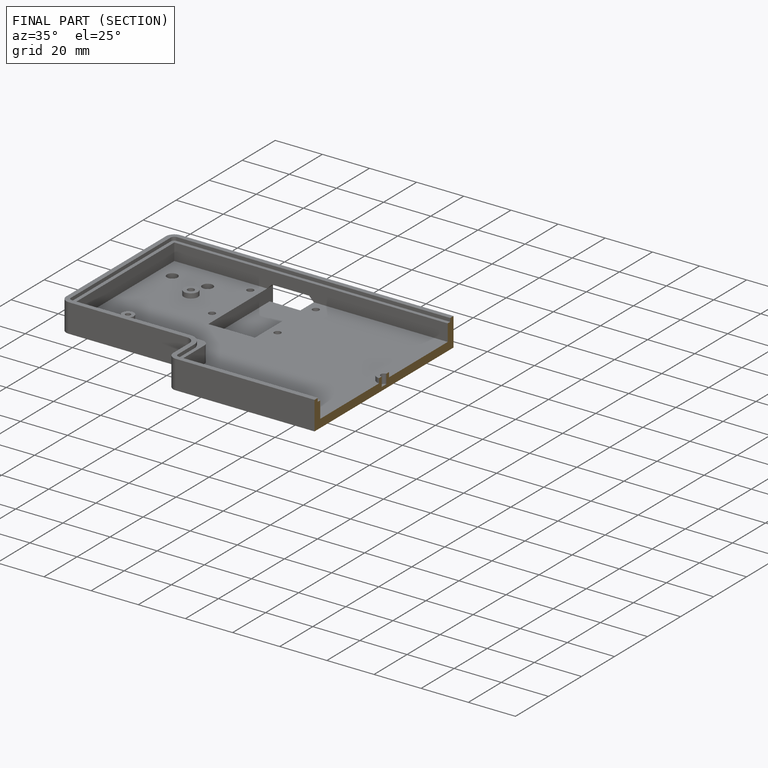
[diagram: finished part — half-section view (interior)]
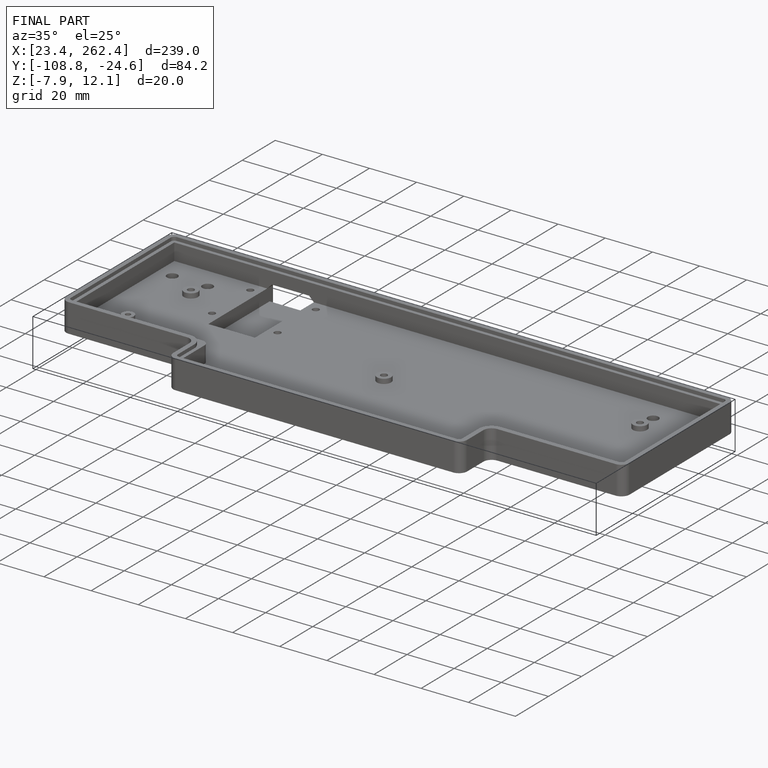
[diagram: finished part — iso view with bounding-box wireframe]
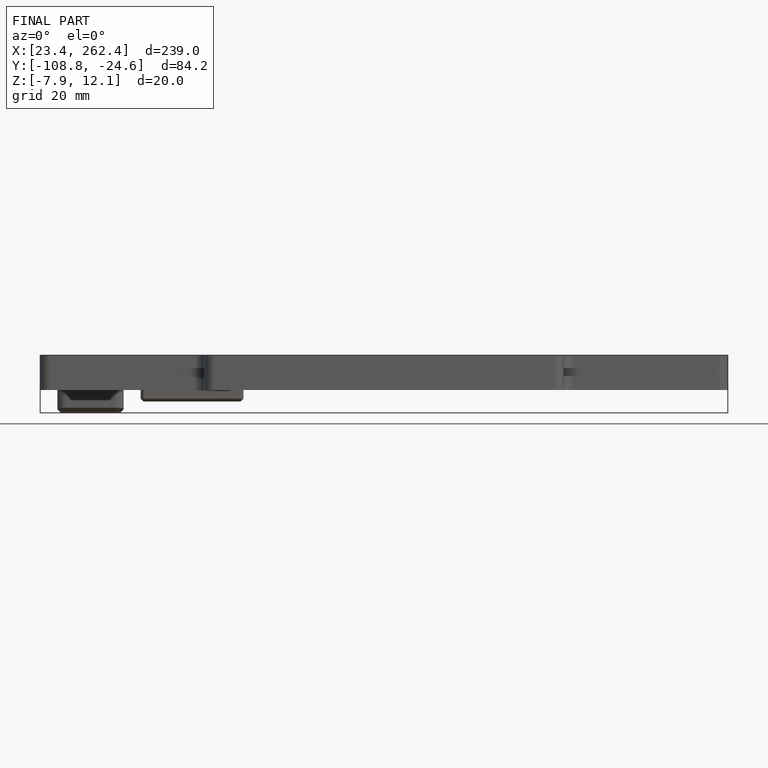
[diagram: finished part — front view with bounding-box wireframe]
